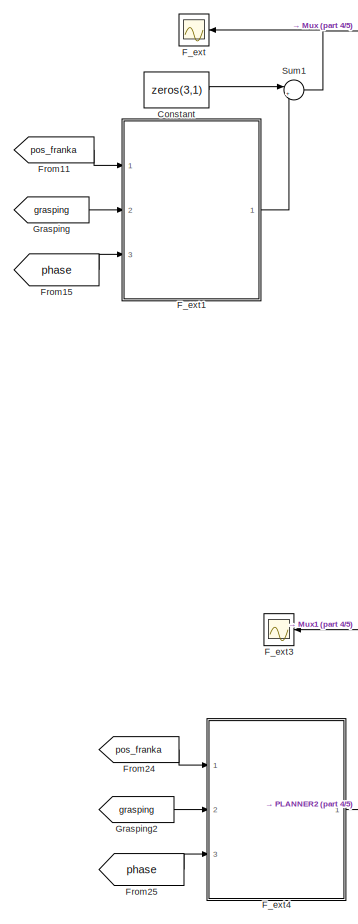
[diagram: root canvas - part 1/5, top left region]
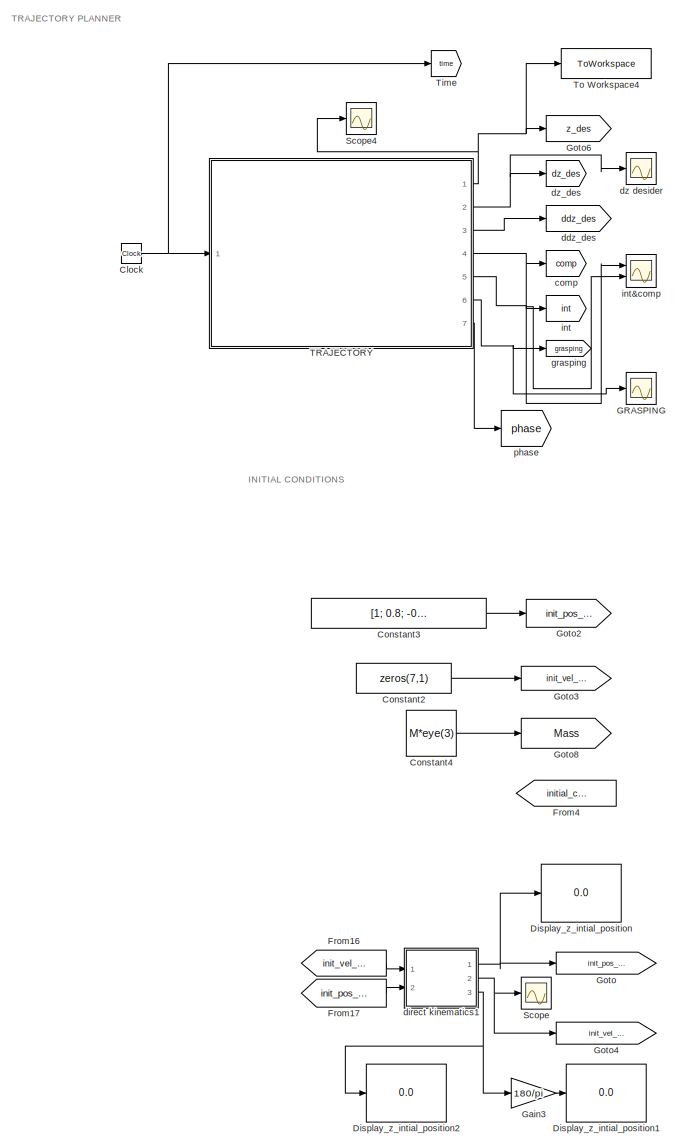
[diagram: root canvas - part 2/5, top left region]
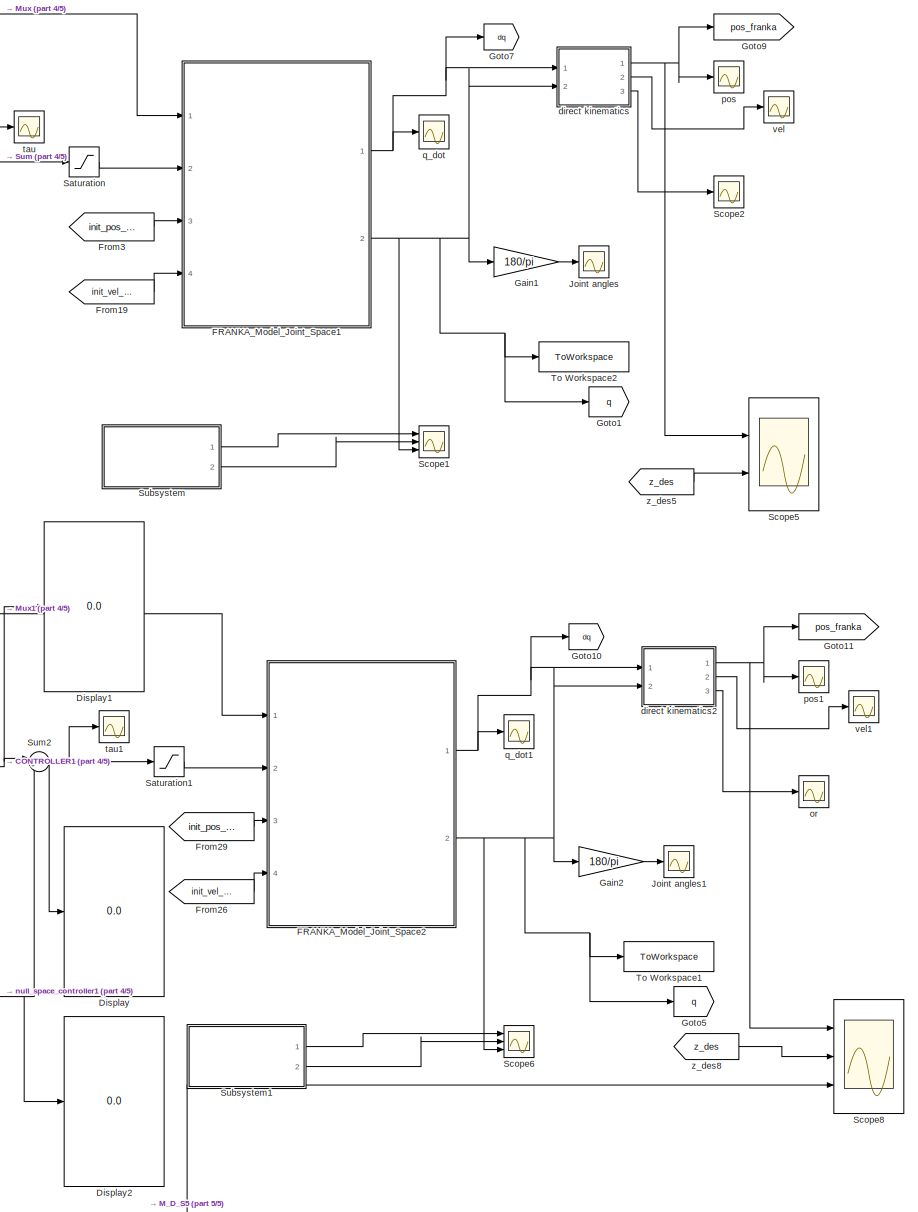
[diagram: root canvas - part 3/5, middle right region]
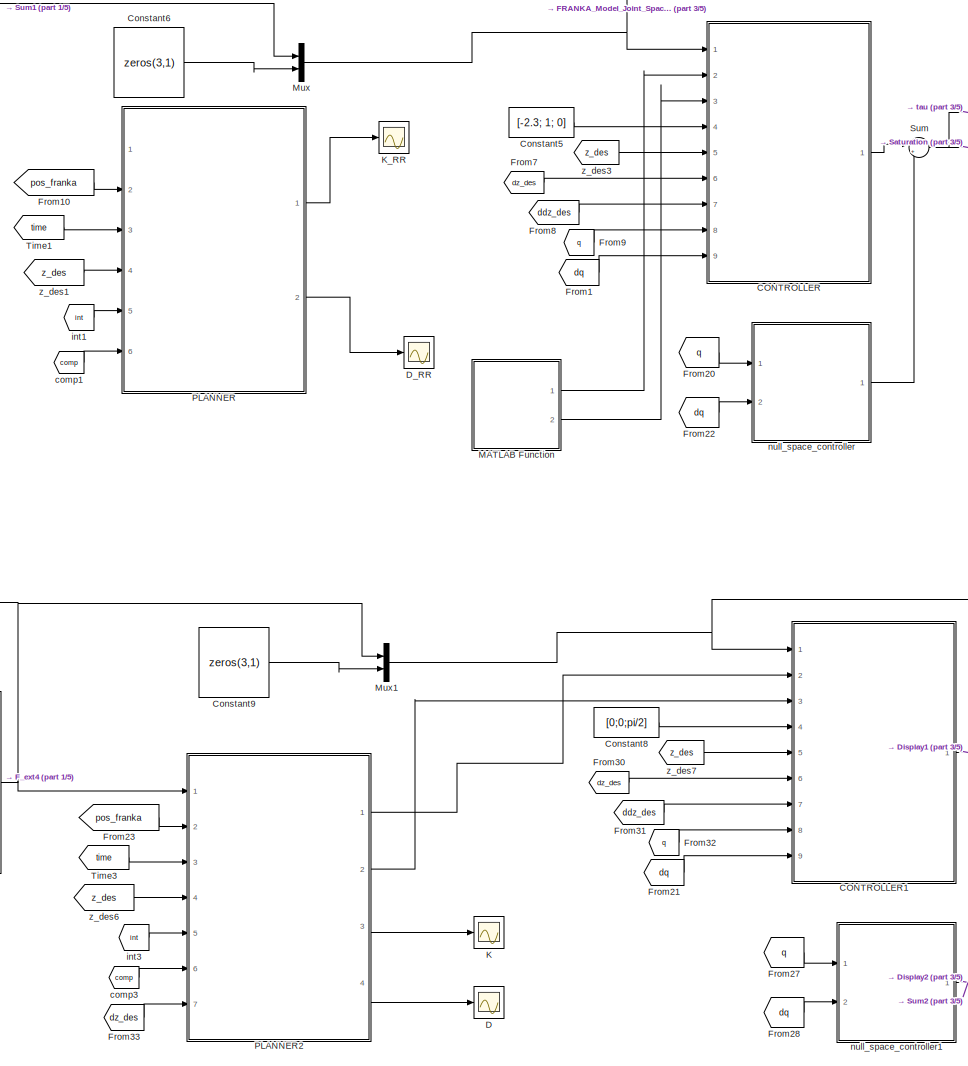
[diagram: root canvas - part 4/5, top center region]
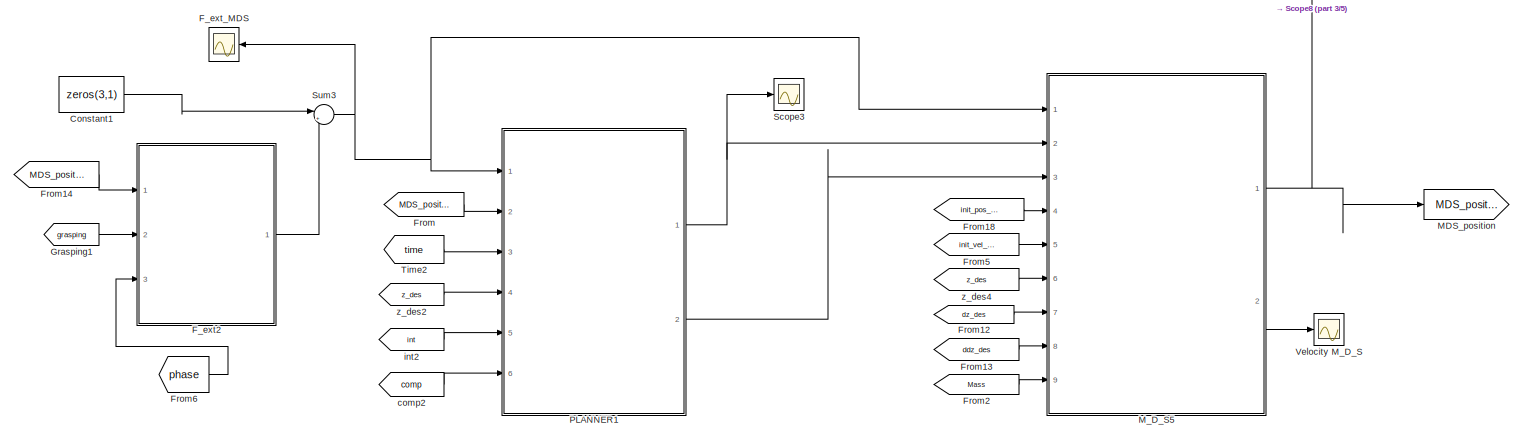
[diagram: root canvas - part 5/5, bottom center region]
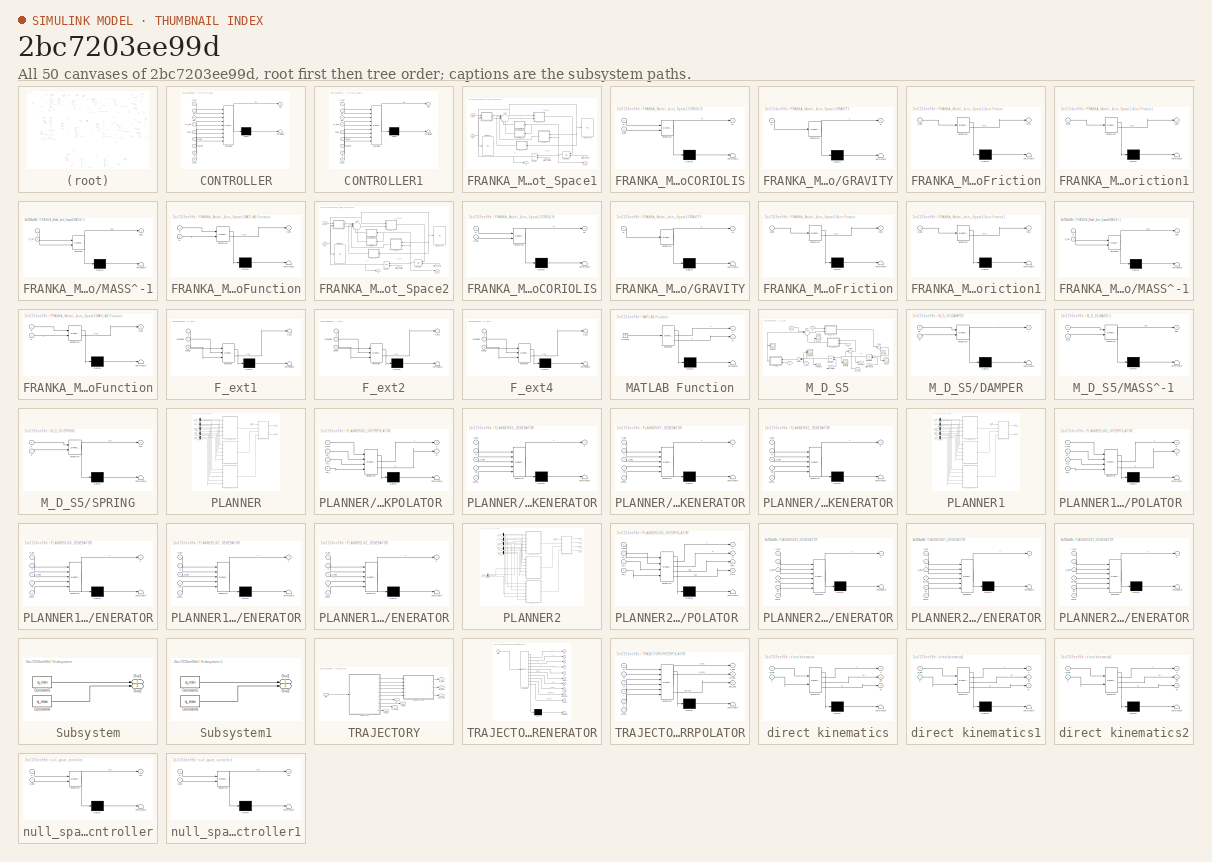
[diagram: thumbnail index - all 50 canvases of the model, root first then tree order]
MODEL slx_2bc7203ee99d
KIND model
CONFIG AbsTol = auto
CONFIG EnableMultiTasking = off
CONFIG FixedStep = 0.01
CONFIG MaxStep = auto
CONFIG MinStep = auto
CONFIG RelTol = 1e-3
CONFIG SampleTimeConstraint = Unconstrained
CONFIG Solver = FixedStepAuto
CONFIG SolverName = FixedStepAuto
CONFIG StartTime = 0.0
CONFIG StopTime = 20
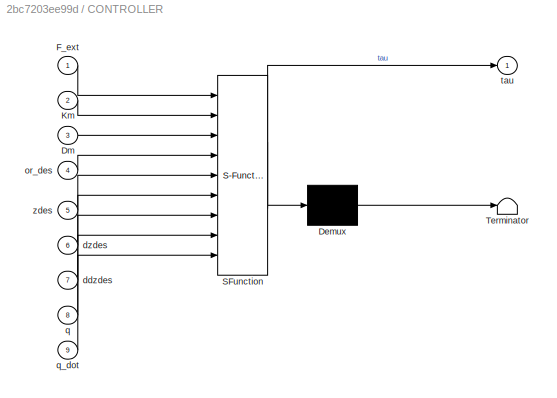
BLOCK [SubSystem] CONTROLLER
  Commented = on
  ErrorFcn = Stateflow.Translate.translate
  PermitHierarchicalResolution = ExplicitOnly
  Ports = [9, 1]
  RequestExecContextInheritance = off
  SFBlockType = MATLAB Function
  TreatAsAtomicUnit = on
BLOCK [Demux] CONTROLLER/ Demux 
  Outputs = 1
  Ports = [1, 1]
BLOCK [S-Function] CONTROLLER/ SFunction 
  EnableBusSupport = on
  FunctionName = sf_sfun
  Parameters = M
  PortCounts = [9 2]
  Ports = [9, 2]
  SFcnIsStateOwnerBlock = off
  SFunctionDeploymentMode = off
  Tag = Stateflow S-Function 3
BLOCK [Terminator] CONTROLLER/ Terminator 
BLOCK [Inport] CONTROLLER/Dm
  Port = 3
BLOCK [Inport] CONTROLLER/F_ext
BLOCK [Inport] CONTROLLER/Km
  Port = 2
BLOCK [Inport] CONTROLLER/ddzdes
  Port = 7
BLOCK [Inport] CONTROLLER/dzdes
  Port = 6
BLOCK [Inport] CONTROLLER/or_des
  Port = 4
BLOCK [Inport] CONTROLLER/q
  Port = 8
BLOCK [Inport] CONTROLLER/q_dot
  Port = 9
BLOCK [Outport] CONTROLLER/tau
BLOCK [Inport] CONTROLLER/zdes
  Port = 5
BLOCK [SubSystem] CONTROLLER1
  ErrorFcn = Stateflow.Translate.translate
  PermitHierarchicalResolution = ExplicitOnly
  Ports = [9, 1]
  RequestExecContextInheritance = off
  SFBlockType = MATLAB Function
  TreatAsAtomicUnit = on
BLOCK [Demux] CONTROLLER1/ Demux 
  Outputs = 1
  Ports = [1, 1]
BLOCK [S-Function] CONTROLLER1/ SFunction 
  EnableBusSupport = on
  FunctionName = sf_sfun
  Parameters = M
  PortCounts = [9 2]
  Ports = [9, 2]
  SFcnIsStateOwnerBlock = off
  SFunctionDeploymentMode = off
  Tag = Stateflow S-Function 27
BLOCK [Terminator] CONTROLLER1/ Terminator 
BLOCK [Inport] CONTROLLER1/Dm
  Port = 3
BLOCK [Inport] CONTROLLER1/F_ext
BLOCK [Inport] CONTROLLER1/Km
  Port = 2
BLOCK [Inport] CONTROLLER1/ddzdes
  Port = 7
BLOCK [Inport] CONTROLLER1/dzdes
  Port = 6
BLOCK [Inport] CONTROLLER1/or_des
  Port = 4
BLOCK [Inport] CONTROLLER1/q
  Port = 8
BLOCK [Inport] CONTROLLER1/q_dot
  Port = 9
BLOCK [Outport] CONTROLLER1/tau
BLOCK [Inport] CONTROLLER1/zdes
  Port = 5
BLOCK [Clock] Clock
BLOCK [Constant] Constant
  Commented = on
  Value = zeros(3,1)
BLOCK [Constant] Constant1
  Value = zeros(3,1)
BLOCK [Constant] Constant2
  Value = zeros(7,1)
BLOCK [Constant] Constant3
  Value = [1; 0.8; -0.1; -1.6; -0.7; 1.1; 1]
  VectorParams1D = off
BLOCK [Constant] Constant4
  Value = M*eye(3)
BLOCK [Constant] Constant5
  Commented = on
  Value = [-2.3; 1; 0]
BLOCK [Constant] Constant6
  Commented = on
  Value = zeros(3,1)
BLOCK [Constant] Constant8
  Value = [0;0;pi/2]
BLOCK [Constant] Constant9
  Value = zeros(3,1)
BLOCK [Scope] D
  Floating = off
  NumInputPorts = 1
  Ports = [1]
  ScopeSpecificationString = Simulink.scopes.TimeScopeBlockCfg('CurrentConfiguration', extmgr.ConfigurationSet(extmgr.Configuration('Core','General UI',true),extmgr.Configuration('Core','Source UI',true),extmgr.Configuration('Sources','WiredSimulink',true,'DataLoggingVariableName','ScopeData2'),extmgr.Configuration('Visuals','Time Domain',true,'SerializedDisplays',{struct('MinYLimReal','2.01039','MaxYLimReal','60.0935','YLabe...<+1408ch>
BLOCK [Scope] D_RR
  Commented = on
  Floating = off
  NumInputPorts = 1
  Ports = [1]
  ScopeSpecificationString = Simulink.scopes.TimeScopeBlockCfg('CurrentConfiguration', extmgr.ConfigurationSet(extmgr.Configuration('Core','General UI',true),extmgr.Configuration('Core','Source UI',true),extmgr.Configuration('Sources','WiredSimulink',true,'DataLoggingVariableName','ScopeData2'),extmgr.Configuration('Visuals','Time Domain',true,'SerializedDisplays',{struct('MinYLimReal','-1.75089','MaxYLimReal','15.75803','YLa...<+1543ch>
BLOCK [Display] Display
  Decimation = 1
  Ports = [1]
BLOCK [Display] Display1
  Decimation = 1
  Ports = [1]
BLOCK [Display] Display2
  Decimation = 1
  Ports = [1]
BLOCK [Display] Display_z_intial_position
  Decimation = 1
  Ports = [1]
BLOCK [Display] Display_z_intial_position1
  Decimation = 1
  Ports = [1]
BLOCK [Display] Display_z_intial_position2
  Decimation = 1
  Ports = [1]
BLOCK [SubSystem] FRANKA_Model_Joint_Space1
  Commented = on
  Ports = [4, 2]
  RequestExecContextInheritance = off
BLOCK [SubSystem] FRANKA_Model_Joint_Space1/CORIOLIS
  ErrorFcn = Stateflow.Translate.translate
  PermitHierarchicalResolution = ExplicitOnly
  Ports = [2, 1]
  RequestExecContextInheritance = off
  SFBlockType = MATLAB Function
  TreatAsAtomicUnit = on
BLOCK [Demux] FRANKA_Model_Joint_Space1/CORIOLIS/ Demux 
  Outputs = 1
  Ports = [1, 1]
BLOCK [S-Function] FRANKA_Model_Joint_Space1/CORIOLIS/ SFunction 
  EnableBusSupport = on
  FunctionName = sf_sfun
  PortCounts = [2 2]
  Ports = [2, 2]
  SFcnIsStateOwnerBlock = off
  SFunctionDeploymentMode = off
  Tag = Stateflow S-Function 9
BLOCK [Terminator] FRANKA_Model_Joint_Space1/CORIOLIS/ Terminator 
BLOCK [Outport] FRANKA_Model_Joint_Space1/CORIOLIS/Fc
BLOCK [Inport] FRANKA_Model_Joint_Space1/CORIOLIS/q
BLOCK [Inport] FRANKA_Model_Joint_Space1/CORIOLIS/q_dot
  Port = 2
BLOCK [Display] FRANKA_Model_Joint_Space1/Display5
  Decimation = 1
  Ports = [1]
BLOCK [Display] FRANKA_Model_Joint_Space1/Displayqqq
  Decimation = 1
  Ports = [1]
BLOCK [Inport] FRANKA_Model_Joint_Space1/F_ext
BLOCK [SubSystem] FRANKA_Model_Joint_Space1/GRAVITY
  ErrorFcn = Stateflow.Translate.translate
  PermitHierarchicalResolution = ExplicitOnly
  Ports = [1, 1]
  RequestExecContextInheritance = off
  SFBlockType = MATLAB Function
  TreatAsAtomicUnit = on
BLOCK [Demux] FRANKA_Model_Joint_Space1/GRAVITY/ Demux 
  Outputs = 1
  Ports = [1, 1]
BLOCK [S-Function] FRANKA_Model_Joint_Space1/GRAVITY/ SFunction 
  EnableBusSupport = on
  FunctionName = sf_sfun
  PortCounts = [1 2]
  Ports = [1, 2]
  SFcnIsStateOwnerBlock = off
  SFunctionDeploymentMode = off
  Tag = Stateflow S-Function 18
BLOCK [Terminator] FRANKA_Model_Joint_Space1/GRAVITY/ Terminator 
BLOCK [Outport] FRANKA_Model_Joint_Space1/GRAVITY/G
BLOCK [Inport] FRANKA_Model_Joint_Space1/GRAVITY/q
BLOCK [Inport] FRANKA_Model_Joint_Space1/Initial_Position
  Port = 3
BLOCK [Inport] FRANKA_Model_Joint_Space1/Initial_Velocity
  Port = 4
BLOCK [Integrator] FRANKA_Model_Joint_Space1/Integrator
  InitialConditionSource = external
  Ports = [2, 1]
BLOCK [Integrator] FRANKA_Model_Joint_Space1/Integrator1
  InitialCondition = [0;0]
  InitialConditionSource = external
  Ports = [2, 1]
BLOCK [SubSystem] FRANKA_Model_Joint_Space1/Joint Friction
  ErrorFcn = Stateflow.Translate.translate
  PermitHierarchicalResolution = ExplicitOnly
  Ports = [1, 1]
  RequestExecContextInheritance = off
  SFBlockType = MATLAB Function
  TreatAsAtomicUnit = on
BLOCK [Demux] FRANKA_Model_Joint_Space1/Joint Friction/ Demux 
  Outputs = 1
  Ports = [1, 1]
BLOCK [S-Function] FRANKA_Model_Joint_Space1/Joint Friction/ SFunction 
  EnableBusSupport = on
  FunctionName = sf_sfun
  PortCounts = [1 2]
  Ports = [1, 2]
  SFcnIsStateOwnerBlock = off
  SFunctionDeploymentMode = off
  Tag = Stateflow S-Function 20
BLOCK [Terminator] FRANKA_Model_Joint_Space1/Joint Friction/ Terminator 
BLOCK [Inport] FRANKA_Model_Joint_Space1/Joint Friction/q_dot
BLOCK [Outport] FRANKA_Model_Joint_Space1/Joint Friction/tau_f
BLOCK [SubSystem] FRANKA_Model_Joint_Space1/Joint Friction1
  Commented = on
  ErrorFcn = Stateflow.Translate.translate
  PermitHierarchicalResolution = ExplicitOnly
  Ports = [1, 1]
  RequestExecContextInheritance = off
  SFBlockType = MATLAB Function
  TreatAsAtomicUnit = on
BLOCK [Demux] FRANKA_Model_Joint_Space1/Joint Friction1/ Demux 
  Outputs = 1
  Ports = [1, 1]
BLOCK [S-Function] FRANKA_Model_Joint_Space1/Joint Friction1/ SFunction 
  EnableBusSupport = on
  FunctionName = sf_sfun
  PortCounts = [1 2]
  Ports = [1, 2]
  SFcnIsStateOwnerBlock = off
  SFunctionDeploymentMode = off
  Tag = Stateflow S-Function 19
BLOCK [Terminator] FRANKA_Model_Joint_Space1/Joint Friction1/ Terminator 
BLOCK [Inport] FRANKA_Model_Joint_Space1/Joint Friction1/q_dot
BLOCK [Outport] FRANKA_Model_Joint_Space1/Joint Friction1/tau_f
BLOCK [SubSystem] FRANKA_Model_Joint_Space1/MASS^-1
  ErrorFcn = Stateflow.Translate.translate
  PermitHierarchicalResolution = ExplicitOnly
  Ports = [2, 1]
  RequestExecContextInheritance = off
  SFBlockType = MATLAB Function
  TreatAsAtomicUnit = on
BLOCK [Demux] FRANKA_Model_Joint_Space1/MASS^-1/ Demux 
  Outputs = 1
  Ports = [1, 1]
BLOCK [S-Function] FRANKA_Model_Joint_Space1/MASS^-1/ SFunction 
  EnableBusSupport = on
  FunctionName = sf_sfun
  PortCounts = [2 2]
  Ports = [2, 2]
  SFcnIsStateOwnerBlock = off
  SFunctionDeploymentMode = off
  Tag = Stateflow S-Function 24
BLOCK [Terminator] FRANKA_Model_Joint_Space1/MASS^-1/ Terminator 
BLOCK [Inport] FRANKA_Model_Joint_Space1/MASS^-1/F_tot
  Port = 2
BLOCK [Outport] FRANKA_Model_Joint_Space1/MASS^-1/ddq
BLOCK [Inport] FRANKA_Model_Joint_Space1/MASS^-1/q
BLOCK [SubSystem] FRANKA_Model_Joint_Space1/MATLAB Function
  ErrorFcn = Stateflow.Translate.translate
  PermitHierarchicalResolution = ExplicitOnly
  Ports = [2, 1]
  RequestExecContextInheritance = off
  SFBlockType = MATLAB Function
  TreatAsAtomicUnit = on
BLOCK [Demux] FRANKA_Model_Joint_Space1/MATLAB Function/ Demux 
  Outputs = 1
  Ports = [1, 1]
BLOCK [S-Function] FRANKA_Model_Joint_Space1/MATLAB Function/ SFunction 
  EnableBusSupport = on
  FunctionName = sf_sfun
  PortCounts = [2 2]
  Ports = [2, 2]
  SFcnIsStateOwnerBlock = off
  SFunctionDeploymentMode = off
  Tag = Stateflow S-Function 25
BLOCK [Terminator] FRANKA_Model_Joint_Space1/MATLAB Function/ Terminator 
BLOCK [Inport] FRANKA_Model_Joint_Space1/MATLAB Function/F
BLOCK [Outport] FRANKA_Model_Joint_Space1/MATLAB Function/F_ext
BLOCK [Inport] FRANKA_Model_Joint_Space1/MATLAB Function/q
  Port = 2
BLOCK [Sum] FRANKA_Model_Joint_Space1/Sum
  Inputs = ||+--+-+
  Ports = [6, 1]
BLOCK [Outport] FRANKA_Model_Joint_Space1/q
  Port = 2
BLOCK [Outport] FRANKA_Model_Joint_Space1/q_dot
BLOCK [Inport] FRANKA_Model_Joint_Space1/tau
  Port = 2
BLOCK [SubSystem] FRANKA_Model_Joint_Space2
  Ports = [4, 2]
  RequestExecContextInheritance = off
BLOCK [SubSystem] FRANKA_Model_Joint_Space2/CORIOLIS
  ErrorFcn = Stateflow.Translate.translate
  PermitHierarchicalResolution = ExplicitOnly
  Ports = [2, 1]
  RequestExecContextInheritance = off
  SFBlockType = MATLAB Function
  TreatAsAtomicUnit = on
BLOCK [Demux] FRANKA_Model_Joint_Space2/CORIOLIS/ Demux 
  Outputs = 1
  Ports = [1, 1]
BLOCK [S-Function] FRANKA_Model_Joint_Space2/CORIOLIS/ SFunction 
  EnableBusSupport = on
  FunctionName = sf_sfun
  PortCounts = [2 2]
  Ports = [2, 2]
  SFcnIsStateOwnerBlock = off
  SFunctionDeploymentMode = off
  Tag = Stateflow S-Function 28
BLOCK [Terminator] FRANKA_Model_Joint_Space2/CORIOLIS/ Terminator 
BLOCK [Outport] FRANKA_Model_Joint_Space2/CORIOLIS/Fc
BLOCK [Inport] FRANKA_Model_Joint_Space2/CORIOLIS/q
BLOCK [Inport] FRANKA_Model_Joint_Space2/CORIOLIS/q_dot
  Port = 2
BLOCK [Display] FRANKA_Model_Joint_Space2/Display5
  Decimation = 1
  Ports = [1]
BLOCK [Display] FRANKA_Model_Joint_Space2/Displayqqq
  Decimation = 1
  Ports = [1]
BLOCK [Inport] FRANKA_Model_Joint_Space2/F_ext
BLOCK [SubSystem] FRANKA_Model_Joint_Space2/GRAVITY
  ErrorFcn = Stateflow.Translate.translate
  PermitHierarchicalResolution = ExplicitOnly
  Ports = [1, 1]
  RequestExecContextInheritance = off
  SFBlockType = MATLAB Function
  TreatAsAtomicUnit = on
BLOCK [Demux] FRANKA_Model_Joint_Space2/GRAVITY/ Demux 
  Outputs = 1
  Ports = [1, 1]
BLOCK [S-Function] FRANKA_Model_Joint_Space2/GRAVITY/ SFunction 
  EnableBusSupport = on
  FunctionName = sf_sfun
  PortCounts = [1 2]
  Ports = [1, 2]
  SFcnIsStateOwnerBlock = off
  SFunctionDeploymentMode = off
  Tag = Stateflow S-Function 29
BLOCK [Terminator] FRANKA_Model_Joint_Space2/GRAVITY/ Terminator 
BLOCK [Outport] FRANKA_Model_Joint_Space2/GRAVITY/G
BLOCK [Inport] FRANKA_Model_Joint_Space2/GRAVITY/q
BLOCK [Inport] FRANKA_Model_Joint_Space2/Initial_Position
  Port = 3
BLOCK [Inport] FRANKA_Model_Joint_Space2/Initial_Velocity
  Port = 4
BLOCK [Integrator] FRANKA_Model_Joint_Space2/Integrator
  InitialConditionSource = external
  Ports = [2, 1]
BLOCK [Integrator] FRANKA_Model_Joint_Space2/Integrator1
  InitialCondition = [0;0]
  InitialConditionSource = external
  Ports = [2, 1]
BLOCK [SubSystem] FRANKA_Model_Joint_Space2/Joint Friction
  ErrorFcn = Stateflow.Translate.translate
  PermitHierarchicalResolution = ExplicitOnly
  Ports = [1, 1]
  RequestExecContextInheritance = off
  SFBlockType = MATLAB Function
  TreatAsAtomicUnit = on
BLOCK [Demux] FRANKA_Model_Joint_Space2/Joint Friction/ Demux 
  Outputs = 1
  Ports = [1, 1]
BLOCK [S-Function] FRANKA_Model_Joint_Space2/Joint Friction/ SFunction 
  EnableBusSupport = on
  FunctionName = sf_sfun
  PortCounts = [1 2]
  Ports = [1, 2]
  SFcnIsStateOwnerBlock = off
  SFunctionDeploymentMode = off
  Tag = Stateflow S-Function 30
BLOCK [Terminator] FRANKA_Model_Joint_Space2/Joint Friction/ Terminator 
BLOCK [Inport] FRANKA_Model_Joint_Space2/Joint Friction/q_dot
BLOCK [Outport] FRANKA_Model_Joint_Space2/Joint Friction/tau_f
BLOCK [SubSystem] FRANKA_Model_Joint_Space2/Joint Friction1
  Commented = on
  ErrorFcn = Stateflow.Translate.translate
  PermitHierarchicalResolution = ExplicitOnly
  Ports = [1, 1]
  RequestExecContextInheritance = off
  SFBlockType = MATLAB Function
  TreatAsAtomicUnit = on
BLOCK [Demux] FRANKA_Model_Joint_Space2/Joint Friction1/ Demux 
  Outputs = 1
  Ports = [1, 1]
BLOCK [S-Function] FRANKA_Model_Joint_Space2/Joint Friction1/ SFunction 
  EnableBusSupport = on
  FunctionName = sf_sfun
  PortCounts = [1 2]
  Ports = [1, 2]
  SFcnIsStateOwnerBlock = off
  SFunctionDeploymentMode = off
  Tag = Stateflow S-Function 31
BLOCK [Terminator] FRANKA_Model_Joint_Space2/Joint Friction1/ Terminator 
BLOCK [Inport] FRANKA_Model_Joint_Space2/Joint Friction1/q_dot
BLOCK [Outport] FRANKA_Model_Joint_Space2/Joint Friction1/tau_f
BLOCK [SubSystem] FRANKA_Model_Joint_Space2/MASS^-1
  ErrorFcn = Stateflow.Translate.translate
  PermitHierarchicalResolution = ExplicitOnly
  Ports = [2, 1]
  RequestExecContextInheritance = off
  SFBlockType = MATLAB Function
  TreatAsAtomicUnit = on
BLOCK [Demux] FRANKA_Model_Joint_Space2/MASS^-1/ Demux 
  Outputs = 1
  Ports = [1, 1]
BLOCK [S-Function] FRANKA_Model_Joint_Space2/MASS^-1/ SFunction 
  EnableBusSupport = on
  FunctionName = sf_sfun
  PortCounts = [2 2]
  Ports = [2, 2]
  SFcnIsStateOwnerBlock = off
  SFunctionDeploymentMode = off
  Tag = Stateflow S-Function 32
BLOCK [Terminator] FRANKA_Model_Joint_Space2/MASS^-1/ Terminator 
BLOCK [Inport] FRANKA_Model_Joint_Space2/MASS^-1/F_tot
  Port = 2
BLOCK [Outport] FRANKA_Model_Joint_Space2/MASS^-1/ddq
BLOCK [Inport] FRANKA_Model_Joint_Space2/MASS^-1/q
BLOCK [SubSystem] FRANKA_Model_Joint_Space2/MATLAB Function
  ErrorFcn = Stateflow.Translate.translate
  PermitHierarchicalResolution = ExplicitOnly
  Ports = [2, 1]
  RequestExecContextInheritance = off
  SFBlockType = MATLAB Function
  TreatAsAtomicUnit = on
BLOCK [Demux] FRANKA_Model_Joint_Space2/MATLAB Function/ Demux 
  Outputs = 1
  Ports = [1, 1]
BLOCK [S-Function] FRANKA_Model_Joint_Space2/MATLAB Function/ SFunction 
  EnableBusSupport = on
  FunctionName = sf_sfun
  PortCounts = [2 2]
  Ports = [2, 2]
  SFcnIsStateOwnerBlock = off
  SFunctionDeploymentMode = off
  Tag = Stateflow S-Function 33
BLOCK [Terminator] FRANKA_Model_Joint_Space2/MATLAB Function/ Terminator 
BLOCK [Inport] FRANKA_Model_Joint_Space2/MATLAB Function/F
BLOCK [Outport] FRANKA_Model_Joint_Space2/MATLAB Function/F_ext
BLOCK [Inport] FRANKA_Model_Joint_Space2/MATLAB Function/q
  Port = 2
BLOCK [Sum] FRANKA_Model_Joint_Space2/Sum
  Inputs = ||+--+-+
  Ports = [6, 1]
BLOCK [Outport] FRANKA_Model_Joint_Space2/q
  Port = 2
BLOCK [Outport] FRANKA_Model_Joint_Space2/q_dot
BLOCK [Inport] FRANKA_Model_Joint_Space2/tau
  Port = 2
BLOCK [Scope] F_ext
  Commented = on
  Floating = off
  NumInputPorts = 1
  Ports = [1]
  ScopeSpecificationString = Simulink.scopes.TimeScopeBlockCfg('CurrentConfiguration', extmgr.ConfigurationSet(extmgr.Configuration('Core','General UI',true),extmgr.Configuration('Core','Source UI',true),extmgr.Configuration('Sources','WiredSimulink',true,'DataLoggingVariableName','ScopeData3'),extmgr.Configuration('Visuals','Time Domain',true,'SerializedDisplays',{struct('MinYLimReal','-28.40115','MaxYLimReal','206.56038','Y...<+1547ch>
BLOCK [SubSystem] F_ext1
  Commented = on
  ErrorFcn = Stateflow.Translate.translate
  PermitHierarchicalResolution = ExplicitOnly
  Ports = [3, 1]
  RequestExecContextInheritance = off
  SFBlockType = MATLAB Function
  TreatAsAtomicUnit = on
BLOCK [Demux] F_ext1/ Demux 
  Outputs = 1
  Ports = [1, 1]
BLOCK [S-Function] F_ext1/ SFunction 
  EnableBusSupport = on
  FunctionName = sf_sfun
  Parameters = g,k_can,k_shelf,k_table,k_wall,l_can,mass_can,y_can,y_wall,z_shelf,z_table
  PortCounts = [3 2]
  Ports = [3, 2]
  SFcnIsStateOwnerBlock = off
  SFunctionDeploymentMode = off
  Tag = Stateflow S-Function 2
BLOCK [Terminator] F_ext1/ Terminator 
BLOCK [Outport] F_ext1/F_ext
BLOCK [Inport] F_ext1/grasping
  Port = 2
BLOCK [Inport] F_ext1/phase
  Port = 3
BLOCK [Inport] F_ext1/z
BLOCK [SubSystem] F_ext2
  ErrorFcn = Stateflow.Translate.translate
  PermitHierarchicalResolution = ExplicitOnly
  Ports = [3, 1]
  RequestExecContextInheritance = off
  SFBlockType = MATLAB Function
  TreatAsAtomicUnit = on
BLOCK [Demux] F_ext2/ Demux 
  Outputs = 1
  Ports = [1, 1]
BLOCK [S-Function] F_ext2/ SFunction 
  EnableBusSupport = on
  FunctionName = sf_sfun
  Parameters = g,k_can,k_shelf,k_table,k_wall,l_can,mass_can,y_can,y_wall,z_shelf,z_table
  PortCounts = [3 2]
  Ports = [3, 2]
  SFcnIsStateOwnerBlock = off
  SFunctionDeploymentMode = off
  Tag = Stateflow S-Function 1
BLOCK [Terminator] F_ext2/ Terminator 
BLOCK [Outport] F_ext2/F_ext
BLOCK [Inport] F_ext2/grasping
  Port = 2
BLOCK [Inport] F_ext2/phase
  Port = 3
BLOCK [Inport] F_ext2/z
BLOCK [Scope] F_ext3
  Floating = off
  NumInputPorts = 1
  Ports = [1]
  ScopeSpecificationString = Simulink.scopes.TimeScopeBlockCfg('CurrentConfiguration', extmgr.ConfigurationSet(extmgr.Configuration('Core','General UI',true),extmgr.Configuration('Core','Source UI',true),extmgr.Configuration('Sources','WiredSimulink',true,'DataLoggingVariableName','ScopeData2'),extmgr.Configuration('Visuals','Time Domain',true,'SerializedDisplays',{struct('MinYLimReal','-8.89631','MaxYLimReal','31.0168','YLab...<+1558ch>
BLOCK [SubSystem] F_ext4
  ErrorFcn = Stateflow.Translate.translate
  PermitHierarchicalResolution = ExplicitOnly
  Ports = [3, 1]
  RequestExecContextInheritance = off
  SFBlockType = MATLAB Function
  TreatAsAtomicUnit = on
BLOCK [Demux] F_ext4/ Demux 
  Outputs = 1
  Ports = [1, 1]
BLOCK [S-Function] F_ext4/ SFunction 
  EnableBusSupport = on
  FunctionName = sf_sfun
  Parameters = g,k_can,k_shelf,k_table,k_wall,l_can,mass_can,y_can,y_wall,z_shelf,z_table
  PortCounts = [3 2]
  Ports = [3, 2]
  SFcnIsStateOwnerBlock = off
  SFunctionDeploymentMode = off
  Tag = Stateflow S-Function 34
BLOCK [Terminator] F_ext4/ Terminator 
BLOCK [Outport] F_ext4/F_ext
BLOCK [Inport] F_ext4/grasping
  Port = 2
BLOCK [Inport] F_ext4/phase
  Port = 3
BLOCK [Inport] F_ext4/z
BLOCK [Scope] F_ext_MDS
  Floating = off
  NumInputPorts = 1
  Ports = [1]
  ScopeSpecificationString = Simulink.scopes.TimeScopeBlockCfg('CurrentConfiguration', extmgr.ConfigurationSet(extmgr.Configuration('Core','General UI',true),extmgr.Configuration('Core','Source UI',true),extmgr.Configuration('Sources','WiredSimulink',true,'DataLoggingVariableName','ScopeData4'),extmgr.Configuration('Visuals','Time Domain',true,'SerializedDisplays',{struct('MinYLimReal','-9.68028','MaxYLimReal','12.56825','YLa...<+1585ch>
BLOCK [From] From
  GotoTag = MDS_position
BLOCK [From] From1
  Commented = on
  GotoTag = dq
BLOCK [From] From10
  Commented = on
  GotoTag = pos_franka
BLOCK [From] From11
  Commented = on
  GotoTag = pos_franka
BLOCK [From] From12
  GotoTag = dz_des
  TagVisibility = global
BLOCK [From] From13
  GotoTag = ddz_des
BLOCK [From] From14
  GotoTag = MDS_position
BLOCK [From] From15
  Commented = on
  GotoTag = phase
BLOCK [From] From16
  GotoTag = init_vel_franka
BLOCK [From] From17
  GotoTag = init_pos_franka
BLOCK [From] From18
  GotoTag = init_pos_MDS
BLOCK [From] From19
  Commented = on
  GotoTag = init_vel_franka
BLOCK [From] From2
  GotoTag = Mass
BLOCK [From] From20
  Commented = on
  GotoTag = q
BLOCK [From] From21
  GotoTag = dq
BLOCK [From] From22
  Commented = on
  GotoTag = dq
BLOCK [From] From23
  GotoTag = pos_franka
BLOCK [From] From24
  GotoTag = pos_franka
BLOCK [From] From25
  GotoTag = phase
BLOCK [From] From26
  GotoTag = init_vel_franka
BLOCK [From] From27
  GotoTag = q
BLOCK [From] From28
  GotoTag = dq
BLOCK [From] From29
  GotoTag = init_pos_franka
BLOCK [From] From3
  Commented = on
  GotoTag = init_pos_franka
BLOCK [From] From30
  GotoTag = dz_des
  TagVisibility = global
BLOCK [From] From31
  GotoTag = ddz_des
BLOCK [From] From32
  GotoTag = q
BLOCK [From] From33
  GotoTag = dz_des
  TagVisibility = global
BLOCK [From] From4
  Commented = on
  GotoTag = initial_condition
BLOCK [From] From5
  GotoTag = init_vel_MDS
BLOCK [From] From6
  GotoTag = phase
BLOCK [From] From7
  Commented = on
  GotoTag = dz_des
  TagVisibility = global
BLOCK [From] From8
  Commented = on
  GotoTag = ddz_des
BLOCK [From] From9
  Commented = on
  GotoTag = q
BLOCK [Scope] GRASPING
  Floating = off
  NumInputPorts = 1
  Ports = [1]
  ScopeSpecificationString = Simulink.scopes.TimeScopeBlockCfg('CurrentConfiguration', extmgr.ConfigurationSet(extmgr.Configuration('Core','General UI',true),extmgr.Configuration('Core','Source UI',true),extmgr.Configuration('Sources','WiredSimulink',true,'DataLoggingVariableName','ScopeData5'),extmgr.Configuration('Visuals','Time Domain',true,'SerializedDisplays',{struct('MinYLimReal','-0.125','MaxYLimReal','1.125','YLabelRe...<+1421ch>
BLOCK [Gain] Gain1
  Commented = on
  Gain = 180/pi
BLOCK [Gain] Gain2
  Gain = 180/pi
BLOCK [Gain] Gain3
  Gain = 180/pi
BLOCK [Goto] Goto
  GotoTag = init_pos_MDS
BLOCK [Goto] Goto1
  Commented = on
  GotoTag = q
BLOCK [Goto] Goto10
  GotoTag = dq
BLOCK [Goto] Goto11
  GotoTag = pos_franka
BLOCK [Goto] Goto2
  GotoTag = init_pos_franka
BLOCK [Goto] Goto3
  GotoTag = init_vel_franka
BLOCK [Goto] Goto4
  GotoTag = init_vel_MDS
BLOCK [Goto] Goto5
  GotoTag = q
BLOCK [Goto] Goto6
  GotoTag = z_des
BLOCK [Goto] Goto7
  Commented = on
  GotoTag = dq
BLOCK [Goto] Goto8
  GotoTag = Mass
BLOCK [Goto] Goto9
  Commented = on
  GotoTag = pos_franka
BLOCK [From] Grasping
  Commented = on
  GotoTag = grasping
BLOCK [From] Grasping1
  GotoTag = grasping
BLOCK [From] Grasping2
  GotoTag = grasping
BLOCK [Scope] Joint angles
  Commented = on
  Floating = off
  NumInputPorts = 1
  Ports = [1]
  ScopeSpecificationString = Simulink.scopes.TimeScopeBlockCfg('CurrentConfiguration', extmgr.ConfigurationSet(extmgr.Configuration('Core','General UI',true),extmgr.Configuration('Core','Source UI',true),extmgr.Configuration('Sources','WiredSimulink',true,'DataLoggingVariableName','ScopeData6'),extmgr.Configuration('Visuals','Time Domain',true,'SerializedDisplays',{struct('MinYLimReal','-158.36602','MaxYLimReal','103.80353','...<+1669ch>
BLOCK [Scope] Joint angles1
  Floating = off
  NumInputPorts = 1
  Ports = [1]
  ScopeSpecificationString = Simulink.scopes.TimeScopeBlockCfg('CurrentConfiguration', extmgr.ConfigurationSet(extmgr.Configuration('Core','General UI',true),extmgr.Configuration('Core','Source UI',true),extmgr.Configuration('Sources','WiredSimulink',true,'DataLoggingVariableName','ScopeData3'),extmgr.Configuration('Visuals','Time Domain',true,'SerializedDisplays',{struct('MinYLimReal','-179.63224','MaxYLimReal','130.39348','...<+1669ch>
BLOCK [Scope] K
  Floating = off
  NumInputPorts = 1
  Ports = [1]
  ScopeSpecificationString = Simulink.scopes.TimeScopeBlockCfg('CurrentConfiguration', extmgr.ConfigurationSet(extmgr.Configuration('Core','General UI',true),extmgr.Configuration('Core','Source UI',true),extmgr.Configuration('Sources','WiredSimulink',true,'DataLoggingVariableName','ScopeData1'),extmgr.Configuration('Visuals','Time Domain',true,'SerializedDisplays',{struct('MinYLimReal','-32.62499','MaxYLimReal','548.625','YLa...<+1530ch>
BLOCK [Scope] K_RR
  Commented = on
  Floating = off
  NumInputPorts = 1
  Ports = [1]
  ScopeSpecificationString = Simulink.scopes.TimeScopeBlockCfg('CurrentConfiguration', extmgr.ConfigurationSet(extmgr.Configuration('Core','General UI',true),extmgr.Configuration('Core','Source UI',true),extmgr.Configuration('Sources','WiredSimulink',true,'DataLoggingVariableName','ScopeData7'),extmgr.Configuration('Visuals','Time Domain',true,'SerializedDisplays',{struct('MinYLimReal','-61.3125','MaxYLimReal','551.8125','YLa...<+2031ch>
BLOCK [SubSystem] MATLAB Function
  Commented = on
  ErrorFcn = Stateflow.Translate.translate
  PermitHierarchicalResolution = ExplicitOnly
  Ports = [0, 2]
  RequestExecContextInheritance = off
  SFBlockType = MATLAB Function
  TreatAsAtomicUnit = on
BLOCK [Demux] MATLAB Function/ Demux 
  Outputs = 1
  Ports = [1, 1]
BLOCK [Ground] MATLAB Function/ Ground 
BLOCK [S-Function] MATLAB Function/ SFunction 
  EnableBusSupport = on
  FunctionName = sf_sfun
  PortCounts = [1 3]
  Ports = [1, 3]
  SFcnIsStateOwnerBlock = off
  SFunctionDeploymentMode = off
  Tag = Stateflow S-Function 26
BLOCK [Terminator] MATLAB Function/ Terminator 
BLOCK [Outport] MATLAB Function/D
  Port = 2
BLOCK [Outport] MATLAB Function/K
BLOCK [Goto] MDS_position
  GotoTag = MDS_position
BLOCK [SubSystem] M_D_S5
  Ports = [9, 2]
  RequestExecContextInheritance = off
BLOCK [Inport] M_D_S5/D
  Port = 3
BLOCK [SubSystem] M_D_S5/DAMPER
  ErrorFcn = Stateflow.Translate.translate
  PermitHierarchicalResolution = ExplicitOnly
  Ports = [2, 1]
  RequestExecContextInheritance = off
  SFBlockType = MATLAB Function
  TreatAsAtomicUnit = on
BLOCK [Demux] M_D_S5/DAMPER/ Demux 
  Outputs = 1
  Ports = [1, 1]
BLOCK [S-Function] M_D_S5/DAMPER/ SFunction 
  EnableBusSupport = on
  FunctionName = sf_sfun
  PortCounts = [2 2]
  Ports = [2, 2]
  SFcnIsStateOwnerBlock = off
  SFunctionDeploymentMode = off
  Tag = Stateflow S-Function 21
BLOCK [Terminator] M_D_S5/DAMPER/ Terminator 
BLOCK [Inport] M_D_S5/DAMPER/D
  Port = 2
BLOCK [Inport] M_D_S5/DAMPER/dx
BLOCK [Outport] M_D_S5/DAMPER/y
BLOCK [Inport] M_D_S5/F_ext
BLOCK [Inport] M_D_S5/Initial_Position
  Port = 4
BLOCK [Inport] M_D_S5/Initial_Velocity
  Port = 5
BLOCK [Integrator] M_D_S5/Integrator
  InitialConditionSource = external
  Ports = [2, 1]
BLOCK [Integrator] M_D_S5/Integrator1
  InitialConditionSource = external
  Ports = [2, 1]
BLOCK [Inport] M_D_S5/K
  Port = 2
BLOCK [Inport] M_D_S5/M
  Port = 9
BLOCK [SubSystem] M_D_S5/MASS^-1
  ErrorFcn = Stateflow.Translate.translate
  PermitHierarchicalResolution = ExplicitOnly
  Ports = [2, 1]
  RequestExecContextInheritance = off
  SFBlockType = MATLAB Function
  TreatAsAtomicUnit = on
BLOCK [Demux] M_D_S5/MASS^-1/ Demux 
  Outputs = 1
  Ports = [1, 1]
BLOCK [S-Function] M_D_S5/MASS^-1/ SFunction 
  EnableBusSupport = on
  FunctionName = sf_sfun
  PortCounts = [2 2]
  Ports = [2, 2]
  SFcnIsStateOwnerBlock = off
  SFunctionDeploymentMode = off
  Tag = Stateflow S-Function 22
BLOCK [Terminator] M_D_S5/MASS^-1/ Terminator 
BLOCK [Inport] M_D_S5/MASS^-1/F_tot
  Port = 2
BLOCK [Inport] M_D_S5/MASS^-1/M
BLOCK [Outport] M_D_S5/MASS^-1/ddx
BLOCK [Outport] M_D_S5/POSITION
BLOCK [SubSystem] M_D_S5/SPRING
  ErrorFcn = Stateflow.Translate.translate
  PermitHierarchicalResolution = ExplicitOnly
  Ports = [2, 1]
  RequestExecContextInheritance = off
  SFBlockType = MATLAB Function
  TreatAsAtomicUnit = on
BLOCK [Demux] M_D_S5/SPRING/ Demux 
  Outputs = 1
  Ports = [1, 1]
BLOCK [S-Function] M_D_S5/SPRING/ SFunction 
  EnableBusSupport = on
  FunctionName = sf_sfun
  PortCounts = [2 2]
  Ports = [2, 2]
  SFcnIsStateOwnerBlock = off
  SFunctionDeploymentMode = off
  Tag = Stateflow S-Function 23
BLOCK [Terminator] M_D_S5/SPRING/ Terminator 
BLOCK [Inport] M_D_S5/SPRING/K
  Port = 2
BLOCK [Outport] M_D_S5/SPRING/tau
BLOCK [Inport] M_D_S5/SPRING/x
BLOCK [Scope] M_D_S5/Scope
  Floating = off
  NumInputPorts = 1
  Ports = [1]
  ScopeSpecificationString = Simulink.scopes.TimeScopeBlockCfg('CurrentConfiguration', extmgr.ConfigurationSet(extmgr.Configuration('Core','General UI',true),extmgr.Configuration('Core','Source UI',true),extmgr.Configuration('Sources','WiredSimulink',true,'DataLoggingVariableName','ScopeData15'),extmgr.Configuration('Visuals','Time Domain',true,'SerializedDisplays',{struct('MinYLimReal','-37.99931','MaxYLimReal','6.12026','YL...<+1429ch>
BLOCK [Scope] M_D_S5/Scope1
  Floating = off
  NumInputPorts = 1
  Ports = [1]
  ScopeSpecificationString = Simulink.scopes.TimeScopeBlockCfg('CurrentConfiguration', extmgr.ConfigurationSet(extmgr.Configuration('Core','General UI',true),extmgr.Configuration('Core','Source UI',true),extmgr.Configuration('Sources','WiredSimulink',true,'DataLoggingVariableName','ScopeData17'),extmgr.Configuration('Visuals','Time Domain',true,'SerializedDisplays',{struct('MinYLimReal','-42.49417','MaxYLimReal','4.72157','YL...<+1454ch>
BLOCK [Sum] M_D_S5/Sum
  Inputs = |+++
  Ports = [3, 1]
BLOCK [Sum] M_D_S5/Sum1
  Inputs = |+-
  Ports = [2, 1]
BLOCK [Sum] M_D_S5/Sum2
  Inputs = |+-
  Ports = [2, 1]
BLOCK [Sum] M_D_S5/Sum3
  Inputs = |++
  Ports = [2, 1]
BLOCK [Outport] M_D_S5/VELOCITY
  Port = 2
BLOCK [Scope] M_D_S5/acc
  Floating = off
  NumInputPorts = 1
  Ports = [1]
  ScopeSpecificationString = Simulink.scopes.TimeScopeBlockCfg('CurrentConfiguration', extmgr.ConfigurationSet(extmgr.Configuration('Core','General UI',true),extmgr.Configuration('Core','Source UI',true),extmgr.Configuration('Sources','WiredSimulink',true,'DataLoggingVariableName','ScopeData6'),extmgr.Configuration('Visuals','Time Domain',true,'SerializedDisplays',{struct('MinYLimReal','-10.14929','MaxYLimReal','22.48721','YL...<+1470ch>
BLOCK [Inport] M_D_S5/ddz_des
  Port = 8
BLOCK [Inport] M_D_S5/dz_des
  Port = 7
BLOCK [Scope] M_D_S5/posizione
  Floating = off
  NumInputPorts = 2
  Ports = [2]
  ScopeSpecificationString = Simulink.scopes.TimeScopeBlockCfg('CurrentConfiguration', extmgr.ConfigurationSet(extmgr.Configuration('Core','General UI',true),extmgr.Configuration('Core','Source UI',true),extmgr.Configuration('Sources','WiredSimulink',true,'DataLoggingVariableName','ScopeData8'),extmgr.Configuration('Visuals','Time Domain',true,'SerializedDisplays',{struct('MinYLimReal','-0.15023','MaxYLimReal','1.35207','YLab...<+1431ch>
BLOCK [Scope] M_D_S5/velocita
  Floating = off
  NumInputPorts = 1
  Ports = [1]
  ScopeSpecificationString = Simulink.scopes.TimeScopeBlockCfg('CurrentConfiguration', extmgr.ConfigurationSet(extmgr.Configuration('Core','General UI',true),extmgr.Configuration('Core','Source UI',true),extmgr.Configuration('Sources','WiredSimulink',true,'DataLoggingVariableName','ScopeData7'),extmgr.Configuration('Visuals','Time Domain',true,'SerializedDisplays',{struct('MinYLimReal','-0.64463','MaxYLimReal','2.63053','YLab...<+1417ch>
BLOCK [Inport] M_D_S5/z_des
  Port = 6
BLOCK [Mux] Mux
  Commented = on
  DisplayOption = bar
  Inputs = 2
  Ports = [2, 1]
BLOCK [Mux] Mux1
  DisplayOption = bar
  Inputs = 2
  Ports = [2, 1]
BLOCK [SubSystem] PLANNER
  Commented = on
  Ports = [6, 2]
  RequestExecContextInheritance = off
BLOCK [Outport] PLANNER/D
  Port = 2
BLOCK [Demux] PLANNER/Demux
  Outputs = 3
  Ports = [1, 3]
BLOCK [Demux] PLANNER/Demux1
  Outputs = 3
  Ports = [1, 3]
BLOCK [Demux] PLANNER/Demux2
  Outputs = 3
  Ports = [1, 3]
BLOCK [Demux] PLANNER/Demux3
  Outputs = 3
  Ports = [1, 3]
BLOCK [Demux] PLANNER/Demux4
  Outputs = 3
  Ports = [1, 3]
BLOCK [Inport] PLANNER/F_ext
BLOCK [Outport] PLANNER/K
BLOCK [SubSystem] PLANNER/KD_INTERPOLATOR 
  ErrorFcn = Stateflow.Translate.translate
  PermitHierarchicalResolution = ExplicitOnly
  Ports = [4, 2]
  RequestExecContextInheritance = off
  SFBlockType = MATLAB Function
  TreatAsAtomicUnit = on
BLOCK [Demux] PLANNER/KD_INTERPOLATOR / Demux 
  Outputs = 1
  Ports = [1, 1]
BLOCK [S-Function] PLANNER/KD_INTERPOLATOR / SFunction 
  EnableBusSupport = on
  FunctionName = sf_sfun
  Parameters = F_max,M,a0,berta,csi,e_max,mass
  PortCounts = [4 3]
  Ports = [4, 3]
  SFcnIsStateOwnerBlock = off
  SFunctionDeploymentMode = off
  Tag = Stateflow S-Function 15
BLOCK [Terminator] PLANNER/KD_INTERPOLATOR / Terminator 
BLOCK [Outport] PLANNER/KD_INTERPOLATOR /D
  Port = 2
BLOCK [Outport] PLANNER/KD_INTERPOLATOR /K
BLOCK [Inport] PLANNER/KD_INTERPOLATOR /kx_f
  Port = 2
BLOCK [Inport] PLANNER/KD_INTERPOLATOR /ky_f
  Port = 3
BLOCK [Inport] PLANNER/KD_INTERPOLATOR /kz_f
  Port = 4
BLOCK [Inport] PLANNER/KD_INTERPOLATOR /time
BLOCK [SubSystem] PLANNER/KX_GENERATOR
  ErrorFcn = Stateflow.Translate.translate
  PermitHierarchicalResolution = ExplicitOnly
  Ports = [5, 1]
  RequestExecContextInheritance = off
  SFBlockType = MATLAB Function
  TreatAsAtomicUnit = on
BLOCK [Demux] PLANNER/KX_GENERATOR/ Demux 
  Outputs = 1
  Ports = [1, 1]
BLOCK [S-Function] PLANNER/KX_GENERATOR/ SFunction 
  EnableBusSupport = on
  FunctionName = sf_sfun
  Parameters = F_int_max,F_max,e_max
  PortCounts = [5 2]
  Ports = [5, 2]
  SFcnIsStateOwnerBlock = off
  SFunctionDeploymentMode = off
  Tag = Stateflow S-Function 16
BLOCK [Terminator] PLANNER/KX_GENERATOR/ Terminator 
BLOCK [Inport] PLANNER/KX_GENERATOR/F_ext
BLOCK [Inport] PLANNER/KX_GENERATOR/comp
  Port = 5
BLOCK [Inport] PLANNER/KX_GENERATOR/int
  Port = 4
BLOCK [Outport] PLANNER/KX_GENERATOR/k
BLOCK [Inport] PLANNER/KX_GENERATOR/z
  Port = 2
BLOCK [Inport] PLANNER/KX_GENERATOR/z_des
  Port = 3
BLOCK [SubSystem] PLANNER/KY_GENERATOR
  ErrorFcn = Stateflow.Translate.translate
  PermitHierarchicalResolution = ExplicitOnly
  Ports = [5, 1]
  RequestExecContextInheritance = off
  SFBlockType = MATLAB Function
  TreatAsAtomicUnit = on
BLOCK [Demux] PLANNER/KY_GENERATOR/ Demux 
  Outputs = 1
  Ports = [1, 1]
BLOCK [S-Function] PLANNER/KY_GENERATOR/ SFunction 
  EnableBusSupport = on
  FunctionName = sf_sfun
  Parameters = F_int_max,F_max,e_max
  PortCounts = [5 2]
  Ports = [5, 2]
  SFcnIsStateOwnerBlock = off
  SFunctionDeploymentMode = off
  Tag = Stateflow S-Function 4
BLOCK [Terminator] PLANNER/KY_GENERATOR/ Terminator 
BLOCK [Inport] PLANNER/KY_GENERATOR/F_ext
BLOCK [Inport] PLANNER/KY_GENERATOR/comp
  Port = 5
BLOCK [Inport] PLANNER/KY_GENERATOR/int
  Port = 4
BLOCK [Outport] PLANNER/KY_GENERATOR/k
BLOCK [Inport] PLANNER/KY_GENERATOR/z
  Port = 2
BLOCK [Inport] PLANNER/KY_GENERATOR/z_des
  Port = 3
BLOCK [SubSystem] PLANNER/KZ_GENERATOR
  ErrorFcn = Stateflow.Translate.translate
  PermitHierarchicalResolution = ExplicitOnly
  Ports = [5, 1]
  RequestExecContextInheritance = off
  SFBlockType = MATLAB Function
  TreatAsAtomicUnit = on
BLOCK [Demux] PLANNER/KZ_GENERATOR/ Demux 
  Outputs = 1
  Ports = [1, 1]
BLOCK [S-Function] PLANNER/KZ_GENERATOR/ SFunction 
  EnableBusSupport = on
  FunctionName = sf_sfun
  Parameters = F_int_max,F_max,e_max
  PortCounts = [5 2]
  Ports = [5, 2]
  SFcnIsStateOwnerBlock = off
  SFunctionDeploymentMode = off
  Tag = Stateflow S-Function 5
BLOCK [Terminator] PLANNER/KZ_GENERATOR/ Terminator 
BLOCK [Inport] PLANNER/KZ_GENERATOR/F_ext
BLOCK [Inport] PLANNER/KZ_GENERATOR/comp
  Port = 5
BLOCK [Inport] PLANNER/KZ_GENERATOR/int
  Port = 4
BLOCK [Outport] PLANNER/KZ_GENERATOR/k
BLOCK [Inport] PLANNER/KZ_GENERATOR/z
  Port = 2
BLOCK [Inport] PLANNER/KZ_GENERATOR/z_des
  Port = 3
BLOCK [Inport] PLANNER/comp
  Port = 6
BLOCK [Inport] PLANNER/int
  Port = 5
BLOCK [Inport] PLANNER/time
  Port = 3
BLOCK [Inport] PLANNER/z
  Port = 2
BLOCK [Inport] PLANNER/z_des
  Port = 4
BLOCK [SubSystem] PLANNER1
  Ports = [6, 2]
  RequestExecContextInheritance = off
BLOCK [Outport] PLANNER1/D
  Port = 2
BLOCK [Demux] PLANNER1/Demux
  Outputs = 3
  Ports = [1, 3]
BLOCK [Demux] PLANNER1/Demux1
  Outputs = 3
  Ports = [1, 3]
BLOCK [Demux] PLANNER1/Demux2
  Outputs = 3
  Ports = [1, 3]
BLOCK [Demux] PLANNER1/Demux3
  Outputs = 3
  Ports = [1, 3]
BLOCK [Demux] PLANNER1/Demux4
  Outputs = 3
  Ports = [1, 3]
BLOCK [Inport] PLANNER1/F_ext
BLOCK [Outport] PLANNER1/K
BLOCK [SubSystem] PLANNER1/KD_INTERPOLATOR 
  ErrorFcn = Stateflow.Translate.translate
  PermitHierarchicalResolution = ExplicitOnly
  Ports = [4, 2]
  RequestExecContextInheritance = off
  SFBlockType = MATLAB Function
  TreatAsAtomicUnit = on
BLOCK [Demux] PLANNER1/KD_INTERPOLATOR / Demux 
  Outputs = 1
  Ports = [1, 1]
BLOCK [S-Function] PLANNER1/KD_INTERPOLATOR / SFunction 
  EnableBusSupport = on
  FunctionName = sf_sfun
  Parameters = F_max,M,a0,berta,csi,e_max,mass
  PortCounts = [4 3]
  Ports = [4, 3]
  SFcnIsStateOwnerBlock = off
  SFunctionDeploymentMode = off
  Tag = Stateflow S-Function 6
BLOCK [Terminator] PLANNER1/KD_INTERPOLATOR / Terminator 
BLOCK [Outport] PLANNER1/KD_INTERPOLATOR /D
  Port = 2
BLOCK [Outport] PLANNER1/KD_INTERPOLATOR /K
BLOCK [Inport] PLANNER1/KD_INTERPOLATOR /kx_f
  Port = 2
BLOCK [Inport] PLANNER1/KD_INTERPOLATOR /ky_f
  Port = 3
BLOCK [Inport] PLANNER1/KD_INTERPOLATOR /kz_f
  Port = 4
BLOCK [Inport] PLANNER1/KD_INTERPOLATOR /time
BLOCK [SubSystem] PLANNER1/KX_GENERATOR
  ErrorFcn = Stateflow.Translate.translate
  PermitHierarchicalResolution = ExplicitOnly
  Ports = [5, 1]
  RequestExecContextInheritance = off
  SFBlockType = MATLAB Function
  TreatAsAtomicUnit = on
BLOCK [Demux] PLANNER1/KX_GENERATOR/ Demux 
  Outputs = 1
  Ports = [1, 1]
BLOCK [S-Function] PLANNER1/KX_GENERATOR/ SFunction 
  EnableBusSupport = on
  FunctionName = sf_sfun
  Parameters = F_int_max,F_max,e_max
  PortCounts = [5 2]
  Ports = [5, 2]
  SFcnIsStateOwnerBlock = off
  SFunctionDeploymentMode = off
  Tag = Stateflow S-Function 7
BLOCK [Terminator] PLANNER1/KX_GENERATOR/ Terminator 
BLOCK [Inport] PLANNER1/KX_GENERATOR/F_ext
BLOCK [Inport] PLANNER1/KX_GENERATOR/comp
  Port = 5
BLOCK [Inport] PLANNER1/KX_GENERATOR/int
  Port = 4
BLOCK [Outport] PLANNER1/KX_GENERATOR/k
BLOCK [Inport] PLANNER1/KX_GENERATOR/z
  Port = 2
BLOCK [Inport] PLANNER1/KX_GENERATOR/z_des
  Port = 3
BLOCK [SubSystem] PLANNER1/KY_GENERATOR
  ErrorFcn = Stateflow.Translate.translate
  PermitHierarchicalResolution = ExplicitOnly
  Ports = [5, 1]
  RequestExecContextInheritance = off
  SFBlockType = MATLAB Function
  TreatAsAtomicUnit = on
BLOCK [Demux] PLANNER1/KY_GENERATOR/ Demux 
  Outputs = 1
  Ports = [1, 1]
BLOCK [S-Function] PLANNER1/KY_GENERATOR/ SFunction 
  EnableBusSupport = on
  FunctionName = sf_sfun
  Parameters = F_int_max,F_max,e_max
  PortCounts = [5 2]
  Ports = [5, 2]
  SFcnIsStateOwnerBlock = off
  SFunctionDeploymentMode = off
  Tag = Stateflow S-Function 10
BLOCK [Terminator] PLANNER1/KY_GENERATOR/ Terminator 
BLOCK [Inport] PLANNER1/KY_GENERATOR/F_ext
BLOCK [Inport] PLANNER1/KY_GENERATOR/comp
  Port = 5
BLOCK [Inport] PLANNER1/KY_GENERATOR/int
  Port = 4
BLOCK [Outport] PLANNER1/KY_GENERATOR/k
BLOCK [Inport] PLANNER1/KY_GENERATOR/z
  Port = 2
BLOCK [Inport] PLANNER1/KY_GENERATOR/z_des
  Port = 3
BLOCK [SubSystem] PLANNER1/KZ_GENERATOR
  ErrorFcn = Stateflow.Translate.translate
  PermitHierarchicalResolution = ExplicitOnly
  Ports = [5, 1]
  RequestExecContextInheritance = off
  SFBlockType = MATLAB Function
  TreatAsAtomicUnit = on
BLOCK [Demux] PLANNER1/KZ_GENERATOR/ Demux 
  Outputs = 1
  Ports = [1, 1]
BLOCK [S-Function] PLANNER1/KZ_GENERATOR/ SFunction 
  EnableBusSupport = on
  FunctionName = sf_sfun
  Parameters = F_int_max,F_max,e_max
  PortCounts = [5 2]
  Ports = [5, 2]
  SFcnIsStateOwnerBlock = off
  SFunctionDeploymentMode = off
  Tag = Stateflow S-Function 13
BLOCK [Terminator] PLANNER1/KZ_GENERATOR/ Terminator 
BLOCK [Inport] PLANNER1/KZ_GENERATOR/F_ext
BLOCK [Inport] PLANNER1/KZ_GENERATOR/comp
  Port = 5
BLOCK [Inport] PLANNER1/KZ_GENERATOR/int
  Port = 4
BLOCK [Outport] PLANNER1/KZ_GENERATOR/k
BLOCK [Inport] PLANNER1/KZ_GENERATOR/z
  Port = 2
BLOCK [Inport] PLANNER1/KZ_GENERATOR/z_des
  Port = 3
BLOCK [Inport] PLANNER1/comp
  Port = 6
BLOCK [Inport] PLANNER1/int
  Port = 5
BLOCK [Inport] PLANNER1/time
  Port = 3
BLOCK [Inport] PLANNER1/z
  Port = 2
BLOCK [Inport] PLANNER1/z_des
  Port = 4
BLOCK [SubSystem] PLANNER2
  Ports = [7, 4]
  RequestExecContextInheritance = off
BLOCK [Outport] PLANNER2/D
  Port = 2
BLOCK [Demux] PLANNER2/Demux
  Outputs = 3
  Ports = [1, 3]
BLOCK [Demux] PLANNER2/Demux1
  Outputs = 3
  Ports = [1, 3]
BLOCK [Demux] PLANNER2/Demux2
  Outputs = 3
  Ports = [1, 3]
BLOCK [Demux] PLANNER2/Demux3
  Outputs = 3
  Ports = [1, 3]
BLOCK [Demux] PLANNER2/Demux4
  Outputs = 3
  Ports = [1, 3]
BLOCK [Demux] PLANNER2/Demux5
  Outputs = 3
  Ports = [1, 3]
BLOCK [Inport] PLANNER2/F_ext
BLOCK [Outport] PLANNER2/K
BLOCK [SubSystem] PLANNER2/KD_INTERPOLATOR 
  ErrorFcn = Stateflow.Translate.translate
  PermitHierarchicalResolution = ExplicitOnly
  Ports = [4, 4]
  RequestExecContextInheritance = off
  SFBlockType = MATLAB Function
  TreatAsAtomicUnit = on
BLOCK [Demux] PLANNER2/KD_INTERPOLATOR / Demux 
  Outputs = 1
  Ports = [1, 1]
BLOCK [S-Function] PLANNER2/KD_INTERPOLATOR / SFunction 
  EnableBusSupport = on
  FunctionName = sf_sfun
  Parameters = F_max,M,a0,berta,csi,e_max,mass
  PortCounts = [4 5]
  Ports = [4, 5]
  SFcnIsStateOwnerBlock = off
  SFunctionDeploymentMode = off
  Tag = Stateflow S-Function 36
BLOCK [Terminator] PLANNER2/KD_INTERPOLATOR / Terminator 
BLOCK [Outport] PLANNER2/KD_INTERPOLATOR /D
  Port = 2
BLOCK [Outport] PLANNER2/KD_INTERPOLATOR /Dvis
  Port = 4
BLOCK [Outport] PLANNER2/KD_INTERPOLATOR /K
BLOCK [Outport] PLANNER2/KD_INTERPOLATOR /Kvis
  Port = 3
BLOCK [Inport] PLANNER2/KD_INTERPOLATOR /kx_f
  Port = 2
BLOCK [Inport] PLANNER2/KD_INTERPOLATOR /ky_f
  Port = 3
BLOCK [Inport] PLANNER2/KD_INTERPOLATOR /kz_f
  Port = 4
BLOCK [Inport] PLANNER2/KD_INTERPOLATOR /time
BLOCK [SubSystem] PLANNER2/KX_GENERATOR
  ErrorFcn = Stateflow.Translate.translate
  PermitHierarchicalResolution = ExplicitOnly
  Ports = [6, 1]
  RequestExecContextInheritance = off
  SFBlockType = MATLAB Function
  TreatAsAtomicUnit = on
BLOCK [Demux] PLANNER2/KX_GENERATOR/ Demux 
  Outputs = 1
  Ports = [1, 1]
BLOCK [S-Function] PLANNER2/KX_GENERATOR/ SFunction 
  EnableBusSupport = on
  FunctionName = sf_sfun
  Parameters = F_int_max,F_max,e_max
  PortCounts = [6 2]
  Ports = [6, 2]
  SFcnIsStateOwnerBlock = off
  SFunctionDeploymentMode = off
  Tag = Stateflow S-Function 37
BLOCK [Terminator] PLANNER2/KX_GENERATOR/ Terminator 
BLOCK [Inport] PLANNER2/KX_GENERATOR/F_ext
BLOCK [Inport] PLANNER2/KX_GENERATOR/comp
  Port = 6
BLOCK [Inport] PLANNER2/KX_GENERATOR/dz_des
  Port = 4
BLOCK [Inport] PLANNER2/KX_GENERATOR/int
  Port = 5
BLOCK [Outport] PLANNER2/KX_GENERATOR/k
BLOCK [Inport] PLANNER2/KX_GENERATOR/z
  Port = 2
BLOCK [Inport] PLANNER2/KX_GENERATOR/z_des
  Port = 3
BLOCK [SubSystem] PLANNER2/KY_GENERATOR
  ErrorFcn = Stateflow.Translate.translate
  PermitHierarchicalResolution = ExplicitOnly
  Ports = [6, 1]
  RequestExecContextInheritance = off
  SFBlockType = MATLAB Function
  TreatAsAtomicUnit = on
BLOCK [Demux] PLANNER2/KY_GENERATOR/ Demux 
  Outputs = 1
  Ports = [1, 1]
BLOCK [S-Function] PLANNER2/KY_GENERATOR/ SFunction 
  EnableBusSupport = on
  FunctionName = sf_sfun
  Parameters = F_int_max,F_max,e_max
  PortCounts = [6 2]
  Ports = [6, 2]
  SFcnIsStateOwnerBlock = off
  SFunctionDeploymentMode = off
  Tag = Stateflow S-Function 35
BLOCK [Terminator] PLANNER2/KY_GENERATOR/ Terminator 
BLOCK [Inport] PLANNER2/KY_GENERATOR/F_ext
BLOCK [Inport] PLANNER2/KY_GENERATOR/comp
  Port = 6
BLOCK [Inport] PLANNER2/KY_GENERATOR/dz_des
  Port = 4
BLOCK [Inport] PLANNER2/KY_GENERATOR/int
  Port = 5
BLOCK [Outport] PLANNER2/KY_GENERATOR/k
BLOCK [Inport] PLANNER2/KY_GENERATOR/z
  Port = 2
BLOCK [Inport] PLANNER2/KY_GENERATOR/z_des
  Port = 3
BLOCK [SubSystem] PLANNER2/KZ_GENERATOR
  ErrorFcn = Stateflow.Translate.translate
  PermitHierarchicalResolution = ExplicitOnly
  Ports = [6, 1]
  RequestExecContextInheritance = off
  SFBlockType = MATLAB Function
  TreatAsAtomicUnit = on
BLOCK [Demux] PLANNER2/KZ_GENERATOR/ Demux 
  Outputs = 1
  Ports = [1, 1]
BLOCK [S-Function] PLANNER2/KZ_GENERATOR/ SFunction 
  EnableBusSupport = on
  FunctionName = sf_sfun
  Parameters = F_int_max,F_max,e_max
  PortCounts = [6 2]
  Ports = [6, 2]
  SFcnIsStateOwnerBlock = off
  SFunctionDeploymentMode = off
  Tag = Stateflow S-Function 39
BLOCK [Terminator] PLANNER2/KZ_GENERATOR/ Terminator 
BLOCK [Inport] PLANNER2/KZ_GENERATOR/F_ext
BLOCK [Inport] PLANNER2/KZ_GENERATOR/comp
  Port = 6
BLOCK [Inport] PLANNER2/KZ_GENERATOR/dz_des
  Port = 4
BLOCK [Inport] PLANNER2/KZ_GENERATOR/int
  Port = 5
BLOCK [Outport] PLANNER2/KZ_GENERATOR/k
BLOCK [Inport] PLANNER2/KZ_GENERATOR/z
  Port = 2
BLOCK [Inport] PLANNER2/KZ_GENERATOR/z_des
  Port = 3
BLOCK [Inport] PLANNER2/comp
  Port = 6
BLOCK [Outport] PLANNER2/dvis
  Port = 4
BLOCK [Inport] PLANNER2/dz_des
  Port = 7
BLOCK [Inport] PLANNER2/int
  Port = 5
BLOCK [Outport] PLANNER2/kvis
  Port = 3
BLOCK [Inport] PLANNER2/time
  Port = 3
BLOCK [Inport] PLANNER2/z
  Port = 2
BLOCK [Inport] PLANNER2/z_des
  Port = 4
BLOCK [Saturate] Saturation
  Commented = on
  LowerLimit = -100
  UpperLimit = 100
BLOCK [Saturate] Saturation1
  LowerLimit = -100
  UpperLimit = 100
BLOCK [Scope] Scope
  Floating = off
  NumInputPorts = 1
  Ports = [1]
  ScopeSpecificationString = Simulink.scopes.TimeScopeBlockCfg('CurrentConfiguration', extmgr.ConfigurationSet(extmgr.Configuration('Core','General UI',true),extmgr.Configuration('Core','Source UI',true),extmgr.Configuration('Sources','WiredSimulink',true,'DataLoggingVariableName','ScopeData8'),extmgr.Configuration('Visuals','Time Domain',true),extmgr.Configuration('Tools','Plot Navigation',true),extmgr.Configuration('Tools',...<+40ch>
BLOCK [Scope] Scope1
  Commented = on
  Floating = off
  NumInputPorts = 3
  Ports = [3]
  ScopeSpecificationString = Simulink.scopes.TimeScopeBlockCfg('CurrentConfiguration', extmgr.ConfigurationSet(extmgr.Configuration('Core','General UI',true),extmgr.Configuration('Core','Source UI',true),extmgr.Configuration('Sources','WiredSimulink',true,'DataLoggingVariableName','ScopeData9'),extmgr.Configuration('Visuals','Time Domain',true,'SerializedDisplays',{struct('MinYLimReal','-3.71762','MaxYLimReal','4.48555','YLab...<+2326ch>
BLOCK [Scope] Scope2
  Commented = on
  Floating = off
  NumInputPorts = 1
  Ports = [1]
  ScopeSpecificationString = Simulink.scopes.TimeScopeBlockCfg('CurrentConfiguration', extmgr.ConfigurationSet(extmgr.Configuration('Core','General UI',true),extmgr.Configuration('Core','Source UI',true),extmgr.Configuration('Sources','WiredSimulink',true,'DataLoggingVariableName','ScopeData18'),extmgr.Configuration('Visuals','Time Domain',true,'SerializedDisplays',{struct('MinYLimReal','-2.787','MaxYLimReal','1.52102','YLabe...<+1451ch>
BLOCK [Scope] Scope3
  Floating = off
  NumInputPorts = 1
  Ports = [1]
  ScopeSpecificationString = Simulink.scopes.TimeScopeBlockCfg('CurrentConfiguration', extmgr.ConfigurationSet(extmgr.Configuration('Core','General UI',true),extmgr.Configuration('Core','Source UI',true),extmgr.Configuration('Sources','WiredSimulink',true,'DataLoggingVariableName','ScopeData10'),extmgr.Configuration('Visuals','Time Domain',true,'SerializedDisplays',{struct('MinYLimReal','-92.93673','MaxYLimReal','836.43061','...<+1552ch>
BLOCK [Scope] Scope4
  Floating = off
  NumInputPorts = 1
  Ports = [1]
  ScopeSpecificationString = Simulink.scopes.TimeScopeBlockCfg('CurrentConfiguration', extmgr.ConfigurationSet(extmgr.Configuration('Core','General UI',true),extmgr.Configuration('Core','Source UI',true),extmgr.Configuration('Sources','WiredSimulink',true,'DataLoggingVariableName','ScopeData11'),extmgr.Configuration('Visuals','Time Domain',true,'SerializedDisplays',{struct('MinYLimReal','-0.3125','MaxYLimReal','1.8125','YLabe...<+1512ch>
BLOCK [Scope] Scope5
  Commented = on
  Floating = off
  NumInputPorts = 2
  Ports = [2]
  ScopeSpecificationString = Simulink.scopes.TimeScopeBlockCfg('CurrentConfiguration', extmgr.ConfigurationSet(extmgr.Configuration('Core','General UI',true),extmgr.Configuration('Core','Source UI',true),extmgr.Configuration('Sources','WiredSimulink',true,'DataLoggingVariableName','ScopeData1'),extmgr.Configuration('Visuals','Time Domain',true,'SerializedDisplays',{struct('MinYLimReal','-0.5125','MaxYLimReal','0.6125','YLabel...<+1620ch>
BLOCK [Scope] Scope6
  Floating = off
  NumInputPorts = 3
  Ports = [3]
  ScopeSpecificationString = Simulink.scopes.TimeScopeBlockCfg('CurrentConfiguration', extmgr.ConfigurationSet(extmgr.Configuration('Core','General UI',true),extmgr.Configuration('Core','Source UI',true),extmgr.Configuration('Sources','WiredSimulink',true,'DataLoggingVariableName','ScopeData5'),extmgr.Configuration('Visuals','Time Domain',true,'SerializedDisplays',{struct('MinYLimReal','-3.71762','MaxYLimReal','4.48555','YLab...<+2342ch>
BLOCK [Scope] Scope8
  Floating = off
  NumInputPorts = 3
  Ports = [3]
  ScopeSpecificationString = Simulink.scopes.TimeScopeBlockCfg('CurrentConfiguration', extmgr.ConfigurationSet(extmgr.Configuration('Core','General UI',true),extmgr.Configuration('Core','Source UI',true),extmgr.Configuration('Sources','WiredSimulink',true,'DataLoggingVariableName','ScopeData7'),extmgr.Configuration('Visuals','Time Domain',true,'SerializedDisplays',{struct('MinYLimReal','-0.5125','MaxYLimReal','0.6125','YLabel...<+1805ch>
BLOCK [SubSystem] Subsystem
  Commented = on
  Ports = [0, 2]
  RequestExecContextInheritance = off
BLOCK [Constant] Subsystem/Constant5
  Value = q_min
BLOCK [Constant] Subsystem/Constant6
  Value = q_max
BLOCK [Outport] Subsystem/Out1
BLOCK [Outport] Subsystem/Out2
  Port = 2
BLOCK [SubSystem] Subsystem1
  Ports = [0, 2]
  RequestExecContextInheritance = off
BLOCK [Constant] Subsystem1/Constant5
  Value = q_min
BLOCK [Constant] Subsystem1/Constant6
  Value = q_max
BLOCK [Outport] Subsystem1/Out1
BLOCK [Outport] Subsystem1/Out2
  Port = 2
BLOCK [Sum] Sum
  Commented = on
  Inputs = |++
  Ports = [2, 1]
BLOCK [Sum] Sum1
  Commented = on
  Inputs = |++
  Ports = [2, 1]
BLOCK [Sum] Sum2
  Inputs = |++
  Ports = [2, 1]
BLOCK [Sum] Sum3
  Inputs = |++
  Ports = [2, 1]
BLOCK [SubSystem] TRAJECTORY
  Ports = [1, 7]
  RequestExecContextInheritance = off
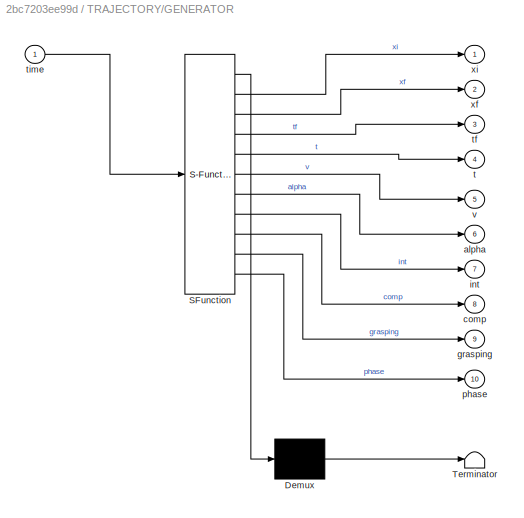
BLOCK [SubSystem] TRAJECTORY/GENERATOR
  ErrorFcn = Stateflow.Translate.translate
  PermitHierarchicalResolution = ExplicitOnly
  Ports = [1, 10]
  RequestExecContextInheritance = off
  SFBlockType = MATLAB Function
  TreatAsAtomicUnit = on
BLOCK [Demux] TRAJECTORY/GENERATOR/ Demux 
  Outputs = 1
  Ports = [1, 1]
BLOCK [S-Function] TRAJECTORY/GENERATOR/ SFunction 
  EnableBusSupport = on
  FunctionName = sf_sfun
  PortCounts = [1 11]
  Ports = [1, 11]
  SFcnIsStateOwnerBlock = off
  SFunctionDeploymentMode = off
  Tag = Stateflow S-Function 11
BLOCK [Terminator] TRAJECTORY/GENERATOR/ Terminator 
BLOCK [Outport] TRAJECTORY/GENERATOR/alpha
  Port = 6
BLOCK [Outport] TRAJECTORY/GENERATOR/comp
  Port = 8
BLOCK [Outport] TRAJECTORY/GENERATOR/grasping
  Port = 9
BLOCK [Outport] TRAJECTORY/GENERATOR/int
  Port = 7
BLOCK [Outport] TRAJECTORY/GENERATOR/phase
  Port = 10
BLOCK [Outport] TRAJECTORY/GENERATOR/t
  Port = 4
BLOCK [Outport] TRAJECTORY/GENERATOR/tf
  Port = 3
BLOCK [Inport] TRAJECTORY/GENERATOR/time
BLOCK [Outport] TRAJECTORY/GENERATOR/v
  Port = 5
BLOCK [Outport] TRAJECTORY/GENERATOR/xf
  Port = 2
BLOCK [Outport] TRAJECTORY/GENERATOR/xi
BLOCK [SubSystem] TRAJECTORY/INTERPOLATOR
  ErrorFcn = Stateflow.Translate.translate
  PermitHierarchicalResolution = ExplicitOnly
  Ports = [6, 3]
  RequestExecContextInheritance = off
  SFBlockType = MATLAB Function
  TreatAsAtomicUnit = on
BLOCK [Demux] TRAJECTORY/INTERPOLATOR/ Demux 
  Outputs = 1
  Ports = [1, 1]
BLOCK [S-Function] TRAJECTORY/INTERPOLATOR/ SFunction 
  EnableBusSupport = on
  FunctionName = sf_sfun
  PortCounts = [6 4]
  Ports = [6, 4]
  SFcnIsStateOwnerBlock = off
  SFunctionDeploymentMode = off
  Tag = Stateflow S-Function 17
BLOCK [Terminator] TRAJECTORY/INTERPOLATOR/ Terminator 
BLOCK [Inport] TRAJECTORY/INTERPOLATOR/alpha
  Port = 6
BLOCK [Outport] TRAJECTORY/INTERPOLATOR/ddz_des
  Port = 3
BLOCK [Outport] TRAJECTORY/INTERPOLATOR/dz_des
  Port = 2
BLOCK [Inport] TRAJECTORY/INTERPOLATOR/t
  Port = 4
BLOCK [Inport] TRAJECTORY/INTERPOLATOR/tf
  Port = 3
BLOCK [Inport] TRAJECTORY/INTERPOLATOR/v
  Port = 5
BLOCK [Inport] TRAJECTORY/INTERPOLATOR/xf
  Port = 2
BLOCK [Inport] TRAJECTORY/INTERPOLATOR/xi
BLOCK [Outport] TRAJECTORY/INTERPOLATOR/z_des
BLOCK [Outport] TRAJECTORY/comp
  Port = 4
BLOCK [Outport] TRAJECTORY/ddz_des
  Port = 3
BLOCK [Outport] TRAJECTORY/dz_des
  Port = 2
BLOCK [Outport] TRAJECTORY/grasping
  Port = 6
BLOCK [Outport] TRAJECTORY/int
  Port = 5
BLOCK [Outport] TRAJECTORY/phase
  Port = 7
BLOCK [Inport] TRAJECTORY/time
BLOCK [Outport] TRAJECTORY/z_des
BLOCK [Goto] Time
  GotoTag = time
BLOCK [From] Time1
  Commented = on
  GotoTag = time
BLOCK [From] Time2
  GotoTag = time
BLOCK [From] Time3
  GotoTag = time
BLOCK [ToWorkspace] To Workspace1
  FixptAsFi = on
  MaxDataPoints = inf
  Ports = [1]
  SampleTime = -1
  SaveFormat = Timeseries
  VariableName = q
BLOCK [ToWorkspace] To Workspace2
  Commented = on
  FixptAsFi = on
  MaxDataPoints = inf
  Ports = [1]
  SampleTime = -1
  SaveFormat = Timeseries
  VariableName = q
BLOCK [ToWorkspace] To Workspace4
  FixptAsFi = on
  MaxDataPoints = inf
  Ports = [1]
  SampleTime = -1
  Save2DSignal = 2-D array (concatenate along first dimension)
  SaveFormat = Timeseries
  VariableName = z_des
BLOCK [Scope] Velocity M_D_S
  Floating = off
  NumInputPorts = 1
  Ports = [1]
  ScopeSpecificationString = Simulink.scopes.TimeScopeBlockCfg('CurrentConfiguration', extmgr.ConfigurationSet(extmgr.Configuration('Core','General UI',true),extmgr.Configuration('Core','Source UI',true),extmgr.Configuration('Sources','WiredSimulink',true,'DataLoggingVariableName','ScopeData12'),extmgr.Configuration('Visuals','Time Domain',true,'SerializedDisplays',{struct('MinYLimReal','-1.35562','MaxYLimReal','2.70609','YLa...<+1413ch>
BLOCK [Goto] comp
  GotoTag = comp
BLOCK [From] comp1
  Commented = on
  GotoTag = comp
BLOCK [From] comp2
  GotoTag = comp
BLOCK [From] comp3
  GotoTag = comp
BLOCK [Goto] ddz_des
  GotoTag = ddz_des
BLOCK [SubSystem] direct kinematics
  Commented = on
  ErrorFcn = Stateflow.Translate.translate
  PermitHierarchicalResolution = ExplicitOnly
  Ports = [2, 3]
  RequestExecContextInheritance = off
  SFBlockType = MATLAB Function
  TreatAsAtomicUnit = on
BLOCK [Demux] direct kinematics/ Demux 
  Outputs = 1
  Ports = [1, 1]
BLOCK [S-Function] direct kinematics/ SFunction 
  EnableBusSupport = on
  FunctionName = sf_sfun
  PortCounts = [2 4]
  Ports = [2, 4]
  SFcnIsStateOwnerBlock = off
  SFunctionDeploymentMode = off
  Tag = Stateflow S-Function 12
BLOCK [Terminator] direct kinematics/ Terminator 
BLOCK [Outport] direct kinematics/dz
  Port = 2
BLOCK [Outport] direct kinematics/or
  Port = 3
BLOCK [Inport] direct kinematics/q
  Port = 2
BLOCK [Inport] direct kinematics/q_dot
BLOCK [Outport] direct kinematics/z
BLOCK [SubSystem] direct kinematics1
  ErrorFcn = Stateflow.Translate.translate
  PermitHierarchicalResolution = ExplicitOnly
  Ports = [2, 3]
  RequestExecContextInheritance = off
  SFBlockType = MATLAB Function
  TreatAsAtomicUnit = on
BLOCK [Demux] direct kinematics1/ Demux 
  Outputs = 1
  Ports = [1, 1]
BLOCK [S-Function] direct kinematics1/ SFunction 
  EnableBusSupport = on
  FunctionName = sf_sfun
  PortCounts = [2 4]
  Ports = [2, 4]
  SFcnIsStateOwnerBlock = off
  SFunctionDeploymentMode = off
  Tag = Stateflow S-Function 14
BLOCK [Terminator] direct kinematics1/ Terminator 
BLOCK [Outport] direct kinematics1/dz
  Port = 2
BLOCK [Outport] direct kinematics1/or
  Port = 3
BLOCK [Inport] direct kinematics1/q
  Port = 2
BLOCK [Inport] direct kinematics1/q_dot
BLOCK [Outport] direct kinematics1/z
BLOCK [SubSystem] direct kinematics2
  ErrorFcn = Stateflow.Translate.translate
  PermitHierarchicalResolution = ExplicitOnly
  Ports = [2, 3]
  RequestExecContextInheritance = off
  SFBlockType = MATLAB Function
  TreatAsAtomicUnit = on
BLOCK [Demux] direct kinematics2/ Demux 
  Outputs = 1
  Ports = [1, 1]
BLOCK [S-Function] direct kinematics2/ SFunction 
  EnableBusSupport = on
  FunctionName = sf_sfun
  PortCounts = [2 4]
  Ports = [2, 4]
  SFcnIsStateOwnerBlock = off
  SFunctionDeploymentMode = off
  Tag = Stateflow S-Function 40
BLOCK [Terminator] direct kinematics2/ Terminator 
BLOCK [Outport] direct kinematics2/dz
  Port = 2
BLOCK [Outport] direct kinematics2/or
  Port = 3
BLOCK [Inport] direct kinematics2/q
  Port = 2
BLOCK [Inport] direct kinematics2/q_dot
BLOCK [Outport] direct kinematics2/z
BLOCK [Scope] dz desider
  Floating = off
  NumInputPorts = 1
  Ports = [1]
  ScopeSpecificationString = Simulink.scopes.TimeScopeBlockCfg('CurrentConfiguration', extmgr.ConfigurationSet(extmgr.Configuration('Core','General UI',true),extmgr.Configuration('Core','Source UI',true),extmgr.Configuration('Sources','WiredSimulink',true,'DataLoggingVariableName','ScopeData1'),extmgr.Configuration('Visuals','Time Domain',true,'SerializedDisplays',{struct('MinYLimReal','-0.35417','MaxYLimReal','0.40972','YLab...<+1520ch>
BLOCK [Goto] dz_des
  GotoTag = dz_des
  TagVisibility = global
BLOCK [Goto] grasping
  GotoTag = grasping
BLOCK [Goto] int
  GotoTag = int
BLOCK [Scope] int&comp
  Floating = off
  NumInputPorts = 2
  Ports = [2]
  ScopeSpecificationString = Simulink.scopes.TimeScopeBlockCfg('CurrentConfiguration', extmgr.ConfigurationSet(extmgr.Configuration('Core','General UI',true),extmgr.Configuration('Core','Source UI',true),extmgr.Configuration('Sources','WiredSimulink',true,'DataLoggingVariableName','ScopeData13'),extmgr.Configuration('Visuals','Time Domain',true,'SerializedDisplays',{struct('MinYLimReal','-0.125','MaxYLimReal','1.125','YLabelR...<+1677ch>
BLOCK [From] int1
  Commented = on
  GotoTag = int
BLOCK [From] int2
  GotoTag = int
BLOCK [From] int3
  GotoTag = int
BLOCK [SubSystem] null_space_controller
  Commented = on
  ErrorFcn = Stateflow.Translate.translate
  PermitHierarchicalResolution = ExplicitOnly
  Ports = [2, 1]
  RequestExecContextInheritance = off
  SFBlockType = MATLAB Function
  TreatAsAtomicUnit = on
BLOCK [Demux] null_space_controller/ Demux 
  Outputs = 1
  Ports = [1, 1]
BLOCK [S-Function] null_space_controller/ SFunction 
  EnableBusSupport = on
  FunctionName = sf_sfun
  PortCounts = [2 2]
  Ports = [2, 2]
  SFcnIsStateOwnerBlock = off
  SFunctionDeploymentMode = off
  Tag = Stateflow S-Function 8
BLOCK [Terminator] null_space_controller/ Terminator 
BLOCK [Inport] null_space_controller/q
BLOCK [Inport] null_space_controller/q_dot
  Port = 2
BLOCK [Outport] null_space_controller/tau
BLOCK [SubSystem] null_space_controller1
  ErrorFcn = Stateflow.Translate.translate
  PermitHierarchicalResolution = ExplicitOnly
  Ports = [2, 1]
  RequestExecContextInheritance = off
  SFBlockType = MATLAB Function
  TreatAsAtomicUnit = on
BLOCK [Demux] null_space_controller1/ Demux 
  Outputs = 1
  Ports = [1, 1]
BLOCK [S-Function] null_space_controller1/ SFunction 
  EnableBusSupport = on
  FunctionName = sf_sfun
  PortCounts = [2 2]
  Ports = [2, 2]
  SFcnIsStateOwnerBlock = off
  SFunctionDeploymentMode = off
  Tag = Stateflow S-Function 41
BLOCK [Terminator] null_space_controller1/ Terminator 
BLOCK [Inport] null_space_controller1/q
BLOCK [Inport] null_space_controller1/q_dot
  Port = 2
BLOCK [Outport] null_space_controller1/tau
BLOCK [Scope] or
  Floating = off
  NumInputPorts = 1
  Ports = [1]
  ScopeSpecificationString = Simulink.scopes.TimeScopeBlockCfg('CurrentConfiguration', extmgr.ConfigurationSet(extmgr.Configuration('Core','General UI',true),extmgr.Configuration('Core','Source UI',true),extmgr.Configuration('Sources','WiredSimulink',true,'DataLoggingVariableName','ScopeData6'),extmgr.Configuration('Visuals','Time Domain',true,'SerializedDisplays',{struct('MinYLimReal','-0.22072','MaxYLimReal','1.86626','YLab...<+1461ch>
BLOCK [Goto] phase
  GotoTag = phase
BLOCK [Scope] pos
  Commented = on
  Floating = off
  NumInputPorts = 1
  Ports = [1]
  ScopeSpecificationString = Simulink.scopes.TimeScopeBlockCfg('CurrentConfiguration', extmgr.ConfigurationSet(extmgr.Configuration('Core','General UI',true),extmgr.Configuration('Core','Source UI',true),extmgr.Configuration('Sources','WiredSimulink',true,'DataLoggingVariableName','ScopeData14'),extmgr.Configuration('Visuals','Time Domain',true,'SerializedDisplays',{struct('MinYLimReal','-0.55425','MaxYLimReal','0.74605','YLa...<+1454ch>
BLOCK [Scope] pos1
  Floating = off
  NumInputPorts = 1
  Ports = [1]
  ScopeSpecificationString = Simulink.scopes.TimeScopeBlockCfg('CurrentConfiguration', extmgr.ConfigurationSet(extmgr.Configuration('Core','General UI',true),extmgr.Configuration('Core','Source UI',true),extmgr.Configuration('Sources','WiredSimulink',true,'DataLoggingVariableName','ScopeData8'),extmgr.Configuration('Visuals','Time Domain',true,'SerializedDisplays',{struct('MinYLimReal','-0.55425','MaxYLimReal','0.74605','YLab...<+1453ch>
BLOCK [Scope] q_dot
  Commented = on
  Floating = off
  NumInputPorts = 1
  Ports = [1]
  ScopeSpecificationString = Simulink.scopes.TimeScopeBlockCfg('CurrentConfiguration', extmgr.ConfigurationSet(extmgr.Configuration('Core','General UI',true),extmgr.Configuration('Core','Source UI',true),extmgr.Configuration('Sources','WiredSimulink',true,'DataLoggingVariableName','ScopeData15'),extmgr.Configuration('Visuals','Time Domain',true,'SerializedDisplays',{struct('MinYLimReal','-19.7687','MaxYLimReal','19.01059','YL...<+1581ch>
BLOCK [Scope] q_dot1
  Floating = off
  NumInputPorts = 1
  Ports = [1]
  ScopeSpecificationString = Simulink.scopes.TimeScopeBlockCfg('CurrentConfiguration', extmgr.ConfigurationSet(extmgr.Configuration('Core','General UI',true),extmgr.Configuration('Core','Source UI',true),extmgr.Configuration('Sources','WiredSimulink',true,'DataLoggingVariableName','ScopeData9'),extmgr.Configuration('Visuals','Time Domain',true,'SerializedDisplays',{struct('MinYLimReal','-19.7687','MaxYLimReal','19.01059','YLa...<+1580ch>
BLOCK [Scope] tau
  Commented = on
  Floating = off
  NumInputPorts = 1
  Ports = [1]
  ScopeSpecificationString = Simulink.scopes.TimeScopeBlockCfg('CurrentConfiguration', extmgr.ConfigurationSet(extmgr.Configuration('Core','General UI',true),extmgr.Configuration('Core','Source UI',true),extmgr.Configuration('Sources','WiredSimulink',true,'DataLoggingVariableName','ScopeData16'),extmgr.Configuration('Visuals','Time Domain',true,'SerializedDisplays',{struct('MinYLimReal','-4440903894658961821771534509986032171...<+2128ch>
BLOCK [Scope] tau1
  Floating = off
  NumInputPorts = 1
  Ports = [1]
  ScopeSpecificationString = Simulink.scopes.TimeScopeBlockCfg('CurrentConfiguration', extmgr.ConfigurationSet(extmgr.Configuration('Core','General UI',true),extmgr.Configuration('Core','Source UI',true),extmgr.Configuration('Sources','WiredSimulink',true,'DataLoggingVariableName','ScopeData10'),extmgr.Configuration('Visuals','Time Domain',true,'SerializedDisplays',{struct('MinYLimReal','-179.93081','MaxYLimReal','236.84155',...<+1663ch>
BLOCK [Scope] vel
  Commented = on
  Floating = off
  NumInputPorts = 1
  Ports = [1]
  ScopeSpecificationString = Simulink.scopes.TimeScopeBlockCfg('CurrentConfiguration', extmgr.ConfigurationSet(extmgr.Configuration('Core','General UI',true),extmgr.Configuration('Core','Source UI',true),extmgr.Configuration('Sources','WiredSimulink',true,'DataLoggingVariableName','ScopeData17'),extmgr.Configuration('Visuals','Time Domain',true,'SerializedDisplays',{struct('MinYLimReal','-2.3883','MaxYLimReal','2.3675','YLabe...<+1453ch>
BLOCK [Scope] vel1
  Floating = off
  NumInputPorts = 1
  Ports = [1]
  ScopeSpecificationString = Simulink.scopes.TimeScopeBlockCfg('CurrentConfiguration', extmgr.ConfigurationSet(extmgr.Configuration('Core','General UI',true),extmgr.Configuration('Core','Source UI',true),extmgr.Configuration('Sources','WiredSimulink',true,'DataLoggingVariableName','ScopeData11'),extmgr.Configuration('Visuals','Time Domain',true,'SerializedDisplays',{struct('MinYLimReal','-0.5029','MaxYLimReal','0.38537','YLab...<+1458ch>
BLOCK [From] z_des1
  Commented = on
  GotoTag = z_des
BLOCK [From] z_des2
  GotoTag = z_des
BLOCK [From] z_des3
  Commented = on
  GotoTag = z_des
BLOCK [From] z_des4
  GotoTag = z_des
BLOCK [From] z_des5
  Commented = on
  GotoTag = z_des
BLOCK [From] z_des6
  GotoTag = z_des
BLOCK [From] z_des7
  GotoTag = z_des
BLOCK [From] z_des8
  GotoTag = z_des
ANNOTATION (root): INITIAL CONDITIONS
ANNOTATION (root): TRAJECTORY PLANNER
ANNOTATION FRANKA_Model_Joint_Space1: q_
ANNOTATION FRANKA_Model_Joint_Space1: q_dot
ANNOTATION FRANKA_Model_Joint_Space1: q_dot_dot
ANNOTATION FRANKA_Model_Joint_Space2: q_
ANNOTATION FRANKA_Model_Joint_Space2: q_dot
ANNOTATION FRANKA_Model_Joint_Space2: q_dot_dot
ANNOTATION M_D_S5: dx
NET CONTROLLER1:1 -> Display1:1, Sum2:1
LINE CONTROLLER:1 -> Sum:1
NET Clock:1 -> TRAJECTORY:1, Time:1
LINE Constant1:1 -> Sum3:1
LINE Constant2:1 -> Goto3:1
LINE Constant3:1 -> Goto2:1
LINE Constant4:1 -> Goto8:1
LINE Constant5:1 -> CONTROLLER:4
LINE Constant6:1 -> Mux:2
LINE Constant8:1 -> CONTROLLER1:4
LINE Constant9:1 -> Mux1:2
LINE Constant:1 -> Sum1:1
LINE FRANKA_Model_Joint_Space1/CORIOLIS:1 -> FRANKA_Model_Joint_Space1/Sum:3
LINE FRANKA_Model_Joint_Space1/F_ext:1 -> FRANKA_Model_Joint_Space1/MATLAB Function:1
LINE FRANKA_Model_Joint_Space1/GRAVITY:1 -> FRANKA_Model_Joint_Space1/Sum:2
LINE FRANKA_Model_Joint_Space1/Initial_Position:1 -> FRANKA_Model_Joint_Space1/Integrator:2
LINE FRANKA_Model_Joint_Space1/Initial_Velocity:1 -> FRANKA_Model_Joint_Space1/Integrator1:2
NET FRANKA_Model_Joint_Space1/Integrator1:1 -> FRANKA_Model_Joint_Space1/CORIOLIS:2, FRANKA_Model_Joint_Space1/Integrator:1, FRANKA_Model_Joint_Space1/Joint Friction1:1, FRANKA_Model_Joint_Space1/Joint Friction:1, FRANKA_Model_Joint_Space1/q_dot:1
NET FRANKA_Model_Joint_Space1/Integrator:1 -> FRANKA_Model_Joint_Space1/CORIOLIS:1, FRANKA_Model_Joint_Space1/Displayqqq:1, FRANKA_Model_Joint_Space1/GRAVITY:1, FRANKA_Model_Joint_Space1/MASS^-1:1, FRANKA_Model_Joint_Space1/MATLAB Function:2, FRANKA_Model_Joint_Space1/q:1
LINE FRANKA_Model_Joint_Space1/Joint Friction1:1 -> FRANKA_Model_Joint_Space1/Sum:6
LINE FRANKA_Model_Joint_Space1/Joint Friction:1 -> FRANKA_Model_Joint_Space1/Sum:5
LINE FRANKA_Model_Joint_Space1/MASS^-1:1 -> FRANKA_Model_Joint_Space1/Integrator1:1
LINE FRANKA_Model_Joint_Space1/MATLAB Function:1 -> FRANKA_Model_Joint_Space1/Sum:1
LINE FRANKA_Model_Joint_Space1/Sum:1 -> FRANKA_Model_Joint_Space1/MASS^-1:2
NET FRANKA_Model_Joint_Space1/tau:1 -> FRANKA_Model_Joint_Space1/Display5:1, FRANKA_Model_Joint_Space1/Sum:4
NET FRANKA_Model_Joint_Space1:1 -> Goto7:1, direct kinematics:1, q_dot:1
NET FRANKA_Model_Joint_Space1:2 -> Gain1:1, Goto1:1, Scope1:3, To Workspace2:1, direct kinematics:2
LINE FRANKA_Model_Joint_Space2/CORIOLIS:1 -> FRANKA_Model_Joint_Space2/Sum:3
LINE FRANKA_Model_Joint_Space2/F_ext:1 -> FRANKA_Model_Joint_Space2/MATLAB Function:1
LINE FRANKA_Model_Joint_Space2/GRAVITY:1 -> FRANKA_Model_Joint_Space2/Sum:2
LINE FRANKA_Model_Joint_Space2/Initial_Position:1 -> FRANKA_Model_Joint_Space2/Integrator:2
LINE FRANKA_Model_Joint_Space2/Initial_Velocity:1 -> FRANKA_Model_Joint_Space2/Integrator1:2
NET FRANKA_Model_Joint_Space2/Integrator1:1 -> FRANKA_Model_Joint_Space2/CORIOLIS:2, FRANKA_Model_Joint_Space2/Integrator:1, FRANKA_Model_Joint_Space2/Joint Friction1:1, FRANKA_Model_Joint_Space2/Joint Friction:1, FRANKA_Model_Joint_Space2/q_dot:1
NET FRANKA_Model_Joint_Space2/Integrator:1 -> FRANKA_Model_Joint_Space2/CORIOLIS:1, FRANKA_Model_Joint_Space2/Displayqqq:1, FRANKA_Model_Joint_Space2/GRAVITY:1, FRANKA_Model_Joint_Space2/MASS^-1:1, FRANKA_Model_Joint_Space2/MATLAB Function:2, FRANKA_Model_Joint_Space2/q:1
LINE FRANKA_Model_Joint_Space2/Joint Friction1:1 -> FRANKA_Model_Joint_Space2/Sum:6
LINE FRANKA_Model_Joint_Space2/Joint Friction:1 -> FRANKA_Model_Joint_Space2/Sum:5
LINE FRANKA_Model_Joint_Space2/MASS^-1:1 -> FRANKA_Model_Joint_Space2/Integrator1:1
LINE FRANKA_Model_Joint_Space2/MATLAB Function:1 -> FRANKA_Model_Joint_Space2/Sum:1
LINE FRANKA_Model_Joint_Space2/Sum:1 -> FRANKA_Model_Joint_Space2/MASS^-1:2
NET FRANKA_Model_Joint_Space2/tau:1 -> FRANKA_Model_Joint_Space2/Display5:1, FRANKA_Model_Joint_Space2/Sum:4
NET FRANKA_Model_Joint_Space2:1 -> Goto10:1, direct kinematics2:1, q_dot1:1
NET FRANKA_Model_Joint_Space2:2 -> Gain2:1, Goto5:1, Scope6:3, To Workspace1:1, direct kinematics2:2
LINE F_ext1:1 -> Sum1:2
LINE F_ext2:1 -> Sum3:2
NET F_ext4:1 -> F_ext3:1, Mux1:1, PLANNER2:1
LINE From10:1 -> PLANNER:2
LINE From11:1 -> F_ext1:1
LINE From12:1 -> M_D_S5:7
LINE From13:1 -> M_D_S5:8
LINE From14:1 -> F_ext2:1
LINE From15:1 -> F_ext1:3
LINE From16:1 -> direct kinematics1:1
LINE From17:1 -> direct kinematics1:2
LINE From18:1 -> M_D_S5:4
LINE From19:1 -> FRANKA_Model_Joint_Space1:4
LINE From1:1 -> CONTROLLER:9
LINE From20:1 -> null_space_controller:1
LINE From21:1 -> CONTROLLER1:9
LINE From22:1 -> null_space_controller:2
LINE From23:1 -> PLANNER2:2
LINE From24:1 -> F_ext4:1
LINE From25:1 -> F_ext4:3
LINE From26:1 -> FRANKA_Model_Joint_Space2:4
LINE From27:1 -> null_space_controller1:1
LINE From28:1 -> null_space_controller1:2
LINE From29:1 -> FRANKA_Model_Joint_Space2:3
LINE From2:1 -> M_D_S5:9
LINE From30:1 -> CONTROLLER1:6
LINE From31:1 -> CONTROLLER1:7
LINE From32:1 -> CONTROLLER1:8
LINE From33:1 -> PLANNER2:7
LINE From3:1 -> FRANKA_Model_Joint_Space1:3
LINE From5:1 -> M_D_S5:5
LINE From6:1 -> F_ext2:3
LINE From7:1 -> CONTROLLER:6
LINE From8:1 -> CONTROLLER:7
LINE From9:1 -> CONTROLLER:8
LINE From:1 -> PLANNER1:2
LINE Gain1:1 -> Joint angles:1
LINE Gain2:1 -> Joint angles1:1
LINE Gain3:1 -> Display_z_intial_position1:1
LINE Grasping1:1 -> F_ext2:2
LINE Grasping2:1 -> F_ext4:2
LINE Grasping:1 -> F_ext1:2
LINE MATLAB Function:1 -> CONTROLLER:2
LINE MATLAB Function:2 -> CONTROLLER:3
LINE M_D_S5/D:1 -> M_D_S5/DAMPER:2
NET M_D_S5/DAMPER:1 -> M_D_S5/Scope:1, M_D_S5/Sum:3
LINE M_D_S5/F_ext:1 -> M_D_S5/Sum:1
LINE M_D_S5/Initial_Position:1 -> M_D_S5/Integrator:2
LINE M_D_S5/Initial_Velocity:1 -> M_D_S5/Integrator1:2
NET M_D_S5/Integrator1:1 -> M_D_S5/Integrator:1, M_D_S5/Sum1:1, M_D_S5/VELOCITY:1, M_D_S5/velocita:1
NET M_D_S5/Integrator:1 -> M_D_S5/POSITION:1, M_D_S5/Sum2:1, M_D_S5/posizione:1
LINE M_D_S5/K:1 -> M_D_S5/SPRING:2
LINE M_D_S5/M:1 -> M_D_S5/MASS^-1:1
LINE M_D_S5/MASS^-1:1 -> M_D_S5/Sum3:1
NET M_D_S5/SPRING:1 -> M_D_S5/Scope1:1, M_D_S5/Sum:2
LINE M_D_S5/Sum1:1 -> M_D_S5/DAMPER:1
LINE M_D_S5/Sum2:1 -> M_D_S5/SPRING:1
NET M_D_S5/Sum3:1 -> M_D_S5/Integrator1:1, M_D_S5/acc:1
LINE M_D_S5/Sum:1 -> M_D_S5/MASS^-1:2
LINE M_D_S5/ddz_des:1 -> M_D_S5/Sum3:2
LINE M_D_S5/dz_des:1 -> M_D_S5/Sum1:2
NET M_D_S5/z_des:1 -> M_D_S5/Sum2:2, M_D_S5/posizione:2
NET M_D_S5:1 -> MDS_position:1, Scope8:3
LINE M_D_S5:2 -> Velocity M_D_S:1
NET Mux1:1 -> CONTROLLER1:1, FRANKA_Model_Joint_Space2:1
NET Mux:1 -> CONTROLLER:1, FRANKA_Model_Joint_Space1:1
LINE PLANNER/Demux1:1 -> PLANNER/KX_GENERATOR:2
LINE PLANNER/Demux1:2 -> PLANNER/KY_GENERATOR:2
LINE PLANNER/Demux1:3 -> PLANNER/KZ_GENERATOR:2
LINE PLANNER/Demux2:1 -> PLANNER/KX_GENERATOR:3
LINE PLANNER/Demux2:2 -> PLANNER/KY_GENERATOR:3
LINE PLANNER/Demux2:3 -> PLANNER/KZ_GENERATOR:3
LINE PLANNER/Demux3:1 -> PLANNER/KX_GENERATOR:4
LINE PLANNER/Demux3:2 -> PLANNER/KY_GENERATOR:4
LINE PLANNER/Demux3:3 -> PLANNER/KZ_GENERATOR:4
LINE PLANNER/Demux4:1 -> PLANNER/KX_GENERATOR:5
LINE PLANNER/Demux4:2 -> PLANNER/KY_GENERATOR:5
LINE PLANNER/Demux4:3 -> PLANNER/KZ_GENERATOR:5
LINE PLANNER/Demux:1 -> PLANNER/KX_GENERATOR:1
LINE PLANNER/Demux:2 -> PLANNER/KY_GENERATOR:1
LINE PLANNER/Demux:3 -> PLANNER/KZ_GENERATOR:1
LINE PLANNER/F_ext:1 -> PLANNER/Demux:1
LINE PLANNER/KD_INTERPOLATOR :1 -> PLANNER/K:1
LINE PLANNER/KD_INTERPOLATOR :2 -> PLANNER/D:1
LINE PLANNER/KX_GENERATOR:1 -> PLANNER/KD_INTERPOLATOR :2
LINE PLANNER/KY_GENERATOR:1 -> PLANNER/KD_INTERPOLATOR :3
LINE PLANNER/KZ_GENERATOR:1 -> PLANNER/KD_INTERPOLATOR :4
LINE PLANNER/comp:1 -> PLANNER/Demux4:1
LINE PLANNER/int:1 -> PLANNER/Demux3:1
LINE PLANNER/time:1 -> PLANNER/KD_INTERPOLATOR :1
LINE PLANNER/z:1 -> PLANNER/Demux1:1
LINE PLANNER/z_des:1 -> PLANNER/Demux2:1
LINE PLANNER1/Demux1:1 -> PLANNER1/KX_GENERATOR:2
LINE PLANNER1/Demux1:2 -> PLANNER1/KY_GENERATOR:2
LINE PLANNER1/Demux1:3 -> PLANNER1/KZ_GENERATOR:2
LINE PLANNER1/Demux2:1 -> PLANNER1/KX_GENERATOR:3
LINE PLANNER1/Demux2:2 -> PLANNER1/KY_GENERATOR:3
LINE PLANNER1/Demux2:3 -> PLANNER1/KZ_GENERATOR:3
LINE PLANNER1/Demux3:1 -> PLANNER1/KX_GENERATOR:4
LINE PLANNER1/Demux3:2 -> PLANNER1/KY_GENERATOR:4
LINE PLANNER1/Demux3:3 -> PLANNER1/KZ_GENERATOR:4
LINE PLANNER1/Demux4:1 -> PLANNER1/KX_GENERATOR:5
LINE PLANNER1/Demux4:2 -> PLANNER1/KY_GENERATOR:5
LINE PLANNER1/Demux4:3 -> PLANNER1/KZ_GENERATOR:5
LINE PLANNER1/Demux:1 -> PLANNER1/KX_GENERATOR:1
LINE PLANNER1/Demux:2 -> PLANNER1/KY_GENERATOR:1
LINE PLANNER1/Demux:3 -> PLANNER1/KZ_GENERATOR:1
LINE PLANNER1/F_ext:1 -> PLANNER1/Demux:1
LINE PLANNER1/KD_INTERPOLATOR :1 -> PLANNER1/K:1
LINE PLANNER1/KD_INTERPOLATOR :2 -> PLANNER1/D:1
LINE PLANNER1/KX_GENERATOR:1 -> PLANNER1/KD_INTERPOLATOR :2
LINE PLANNER1/KY_GENERATOR:1 -> PLANNER1/KD_INTERPOLATOR :3
LINE PLANNER1/KZ_GENERATOR:1 -> PLANNER1/KD_INTERPOLATOR :4
LINE PLANNER1/comp:1 -> PLANNER1/Demux4:1
LINE PLANNER1/int:1 -> PLANNER1/Demux3:1
LINE PLANNER1/time:1 -> PLANNER1/KD_INTERPOLATOR :1
LINE PLANNER1/z:1 -> PLANNER1/Demux1:1
LINE PLANNER1/z_des:1 -> PLANNER1/Demux2:1
NET PLANNER1:1 -> M_D_S5:2, Scope3:1
LINE PLANNER1:2 -> M_D_S5:3
LINE PLANNER2/Demux1:1 -> PLANNER2/KX_GENERATOR:2
LINE PLANNER2/Demux1:2 -> PLANNER2/KY_GENERATOR:2
LINE PLANNER2/Demux1:3 -> PLANNER2/KZ_GENERATOR:2
LINE PLANNER2/Demux2:1 -> PLANNER2/KX_GENERATOR:3
LINE PLANNER2/Demux2:2 -> PLANNER2/KY_GENERATOR:3
LINE PLANNER2/Demux2:3 -> PLANNER2/KZ_GENERATOR:3
LINE PLANNER2/Demux3:1 -> PLANNER2/KX_GENERATOR:5
LINE PLANNER2/Demux3:2 -> PLANNER2/KY_GENERATOR:5
LINE PLANNER2/Demux3:3 -> PLANNER2/KZ_GENERATOR:5
LINE PLANNER2/Demux4:1 -> PLANNER2/KX_GENERATOR:6
LINE PLANNER2/Demux4:2 -> PLANNER2/KY_GENERATOR:6
LINE PLANNER2/Demux4:3 -> PLANNER2/KZ_GENERATOR:6
LINE PLANNER2/Demux5:1 -> PLANNER2/KX_GENERATOR:4
LINE PLANNER2/Demux5:2 -> PLANNER2/KY_GENERATOR:4
LINE PLANNER2/Demux5:3 -> PLANNER2/KZ_GENERATOR:4
LINE PLANNER2/Demux:1 -> PLANNER2/KX_GENERATOR:1
LINE PLANNER2/Demux:2 -> PLANNER2/KY_GENERATOR:1
LINE PLANNER2/Demux:3 -> PLANNER2/KZ_GENERATOR:1
LINE PLANNER2/F_ext:1 -> PLANNER2/Demux:1
LINE PLANNER2/KD_INTERPOLATOR :1 -> PLANNER2/K:1
LINE PLANNER2/KD_INTERPOLATOR :2 -> PLANNER2/D:1
LINE PLANNER2/KD_INTERPOLATOR :3 -> PLANNER2/kvis:1
LINE PLANNER2/KD_INTERPOLATOR :4 -> PLANNER2/dvis:1
LINE PLANNER2/KX_GENERATOR:1 -> PLANNER2/KD_INTERPOLATOR :2
LINE PLANNER2/KY_GENERATOR:1 -> PLANNER2/KD_INTERPOLATOR :3
LINE PLANNER2/KZ_GENERATOR:1 -> PLANNER2/KD_INTERPOLATOR :4
LINE PLANNER2/comp:1 -> PLANNER2/Demux4:1
LINE PLANNER2/dz_des:1 -> PLANNER2/Demux5:1
LINE PLANNER2/int:1 -> PLANNER2/Demux3:1
LINE PLANNER2/time:1 -> PLANNER2/KD_INTERPOLATOR :1
LINE PLANNER2/z:1 -> PLANNER2/Demux1:1
LINE PLANNER2/z_des:1 -> PLANNER2/Demux2:1
LINE PLANNER2:1 -> CONTROLLER1:2
LINE PLANNER2:2 -> CONTROLLER1:3
LINE PLANNER2:3 -> K:1
LINE PLANNER2:4 -> D:1
LINE PLANNER:1 -> K_RR:1
LINE PLANNER:2 -> D_RR:1
LINE Saturation1:1 -> FRANKA_Model_Joint_Space2:2
LINE Saturation:1 -> FRANKA_Model_Joint_Space1:2
LINE Subsystem/Constant5:1 -> Subsystem/Out1:1
LINE Subsystem/Constant6:1 -> Subsystem/Out2:1
LINE Subsystem1/Constant5:1 -> Subsystem1/Out1:1
LINE Subsystem1/Constant6:1 -> Subsystem1/Out2:1
LINE Subsystem1:1 -> Scope6:1
LINE Subsystem1:2 -> Scope6:2
LINE Subsystem:1 -> Scope1:1
LINE Subsystem:2 -> Scope1:2
NET Sum1:1 -> F_ext:1, Mux:1
NET Sum2:1 -> Display:1, Saturation1:1, tau1:1
NET Sum3:1 -> F_ext_MDS:1, M_D_S5:1, PLANNER1:1
NET Sum:1 -> Saturation:1, tau:1
LINE TRAJECTORY/GENERATOR:1 -> TRAJECTORY/INTERPOLATOR:1
LINE TRAJECTORY/GENERATOR:10 -> TRAJECTORY/phase:1
LINE TRAJECTORY/GENERATOR:2 -> TRAJECTORY/INTERPOLATOR:2
LINE TRAJECTORY/GENERATOR:3 -> TRAJECTORY/INTERPOLATOR:3
LINE TRAJECTORY/GENERATOR:4 -> TRAJECTORY/INTERPOLATOR:4
LINE TRAJECTORY/GENERATOR:5 -> TRAJECTORY/INTERPOLATOR:5
LINE TRAJECTORY/GENERATOR:6 -> TRAJECTORY/INTERPOLATOR:6
LINE TRAJECTORY/GENERATOR:7 -> TRAJECTORY/int:1
LINE TRAJECTORY/GENERATOR:8 -> TRAJECTORY/comp:1
LINE TRAJECTORY/GENERATOR:9 -> TRAJECTORY/grasping:1
LINE TRAJECTORY/INTERPOLATOR:1 -> TRAJECTORY/z_des:1
LINE TRAJECTORY/INTERPOLATOR:2 -> TRAJECTORY/dz_des:1
LINE TRAJECTORY/INTERPOLATOR:3 -> TRAJECTORY/ddz_des:1
LINE TRAJECTORY/time:1 -> TRAJECTORY/GENERATOR:1
NET TRAJECTORY:1 -> Goto6:1, Scope4:1, To Workspace4:1
NET TRAJECTORY:2 -> dz desider:1, dz_des:1
LINE TRAJECTORY:3 -> ddz_des:1
NET TRAJECTORY:4 -> comp:1, int&comp:1
NET TRAJECTORY:5 -> int&comp:2, int:1
NET TRAJECTORY:6 -> GRASPING:1, grasping:1
LINE TRAJECTORY:7 -> phase:1
LINE Time1:1 -> PLANNER:3
LINE Time2:1 -> PLANNER1:3
LINE Time3:1 -> PLANNER2:3
LINE comp1:1 -> PLANNER:6
LINE comp2:1 -> PLANNER1:6
LINE comp3:1 -> PLANNER2:6
NET direct kinematics1:1 -> Display_z_intial_position:1, Goto:1
NET direct kinematics1:2 -> Goto4:1, Scope:1
NET direct kinematics1:3 -> Display_z_intial_position2:1, Gain3:1
NET direct kinematics2:1 -> Goto11:1, Scope8:1, pos1:1
LINE direct kinematics2:2 -> vel1:1
LINE direct kinematics2:3 -> or:1
NET direct kinematics:1 -> Goto9:1, Scope5:1, pos:1
LINE direct kinematics:2 -> vel:1
LINE direct kinematics:3 -> Scope2:1
LINE int1:1 -> PLANNER:5
LINE int2:1 -> PLANNER1:5
LINE int3:1 -> PLANNER2:5
NET null_space_controller1:1 -> Display2:1, Sum2:2
LINE null_space_controller:1 -> Sum:2
LINE z_des1:1 -> PLANNER:4
LINE z_des2:1 -> PLANNER1:4
LINE z_des3:1 -> CONTROLLER:5
LINE z_des4:1 -> M_D_S5:6
LINE z_des5:1 -> Scope5:2
LINE z_des6:1 -> PLANNER2:4
LINE z_des7:1 -> CONTROLLER1:5
LINE z_des8:1 -> Scope8:2
note: NET lines group one-source signal fan-out (src -> all destinations, sorted); 1:1 wires keep LINE
CHART F_ext2 states=1 transitions=1
  STATE_LABEL 'eML_blk_kernel()'
  STATE_LABEL 'SCRIPT:\nfunction F_ext = fcn(z, grasping, mass_can, g, phase, y_can, z_table, k_can, k_table, l_can, y_wall, z_shelf, k_wall, k_shelf) \n\n% hypothesis: table reaction force with elastic behaviour\nF_ext = zeros(3,1);\nF_ext(1) = 0;\nif phase == 1\n    % if contact is happened with can\n    if grasping == 0\n        if z(2) < y_can\n            F_ext(2) = -k_can*(z(2) - y_can);    \n        end\n        if z...<+940ch>'  <repeated x3 — deduplicated; at blocks: F_ext2, F_ext1, F_ext4>
CHART F_ext1 states=1 transitions=1
  STATE_LABEL 'eML_blk_kernel()'
CHART CONTROLLER states=1 transitions=1
  STATE_LABEL 'eML_blk_kernel()'
  STATE_LABEL "SCRIPT:\nfunction tau = fcn(F_ext, Km, Dm, or_des, zdes, dzdes, ddzdes, q, q_dot, M)\ncoder.extrinsic('get_MassMatrix','get_Jacobianodot','get_Jacobianoa','get_GravityVector','get_FrictionTorque','get_CoriolisMatrix')\n\n% dz = zeros(2,1);\n% z = zeros(2,1);\nB = zeros(7,7);\nS = zeros(7,7);\nG = zeros(7,1);\nJa = zeros(6,7);\nJa_dot = zeros(6,7);\ntau_fric = zeros(7,1);\nBm = eye(6)*M;\nJa = get_Jacobianoa(q)...<+1244ch>"
CHART PLANNER/KY_GENERATOR states=1 transitions=1
  STATE_LABEL 'eML_blk_kernel()'
  STATE_LABEL 'SCRIPT:\nfunction k = fcn(F_ext, z, z_des, int, comp, e_max, F_max, F_int_max)\n%% Description\n% Set the K coefficient for a variable impedance controller based on a\n% desired trajectory\n\n%% Outputs\n% k             stiffness\n\n%% Inputs\n% F_ext         measured external force\n% z_des         desired trajectory\n% z             current position\n% int, comp     booleans for the interaction and compensat...<+3608ch>'  <repeated x6 — deduplicated; at blocks: KY_GENERATOR, KZ_GENERATOR, KX_GENERATOR>
CHART PLANNER/KZ_GENERATOR states=1 transitions=1
  STATE_LABEL 'eML_blk_kernel()'
CHART PLANNER1/KD_INTERPOLATOR  states=1 transitions=1
  STATE_LABEL 'eML_blk_kernel()'
  STATE_LABEL 'SCRIPT:\nfunction [K,D] = fcn(time, kx_f, ky_f, kz_f, e_max, F_max, M, berta, a0, mass, csi)\n%% Description\n% Interpolate K in order to guarantee stability\n\n%% Outputs\n% K             Stiffness matrix\n% D             Damping matrix\n\n%% Inputs\n% kx_f, ky, f   desired values of K\n\n%% Parameters\n% F_max         nominal disturbance forces\n% e_max         maximum steady-state error\n% M             virtu...<+1576ch>'
CHART PLANNER1/KX_GENERATOR states=1 transitions=1
  STATE_LABEL 'eML_blk_kernel()'
CHART null_space_controller states=1 transitions=1
  STATE_LABEL 'eML_blk_kernel()'
  STATE_LABEL "SCRIPT:\nfunction tau = nsc(q, q_dot)\ncoder.extrinsic('get_Jacobianoa','get_MassMatrix');\nJa = zeros(6,7);\nB = zeros(7,7);\nq_min = [-2.8973   -1.7628   -2.8973   -3.0718   -2.8973   -0.0175  -2.8973];\nq_min = q_min + deg2rad([0 0 0 10 0 5 0]);\n%        166.0031  101.0010  166.0031 -3.9992   166.0031   215.0024  166.0031\nq_max = [ 2.8973    1.7628    2.8973  -0.0698    2.8973    3.7525    2.8973];\nq...<+432ch>"
CHART FRANKA_Model_Joint_Space1/CORIOLIS states=1 transitions=1
  STATE_LABEL 'eML_blk_kernel()'
  STATE_LABEL 'SCRIPT:\nfunction Fc = fcn(q,q_dot)\n\nC = zeros(7,7);\n\nC = get_CoriolisMatrix(q,q_dot);\n\nFc = C*q_dot;\n\nend\n'
CHART PLANNER1/KY_GENERATOR states=1 transitions=1
  STATE_LABEL 'eML_blk_kernel()'
CHART TRAJECTORY/GENERATOR states=1 transitions=1
  STATE_LABEL 'eML_blk_kernel()'
  STATE_LABEL 'SCRIPT:\nfunction  [xi, xf, tf, t, v, alpha, int, comp, grasping, phase] = fcn(time)\n\nalpha = 0.1;\nphase = 1;\nint = [1; 1; 1];\ncomp = [0; 0; 0];\ngrasping = 0;\n\nif time >= 0 && time < 4\n    tf = 4;\n    xi = [0.4; 0.4; 0.2];\n    xf = [0.4; 0.1; -0.1];\n    t = time;\nelseif time >= 4 && time < 5\n    tf = 1;\n    xf = [0.4; 0.1; -0.1];\n    xi = xf; \n    t = time - 4;\nelseif time >= 5 && time < 9\n    tf =...<+2326ch>'
CHART direct kinematics states=1 transitions=1
  STATE_LABEL 'eML_blk_kernel()'
  STATE_LABEL "SCRIPT:\nfunction [z,dz,or] = fcn(q_dot,q)\n% persistent dh_c\n% if isempty(dh_c)\n%     dh_c = Load_Franka_DH();\n% end\n[DH, Conv] = Load_Franka_DH();\nz = zeros(3,1);\n%z = get_pos(q);\n\n[p,R] = DirectKinematic(DH,[q;0],Conv);\nz = p;\nphi = atan2(R(2,1),R(1,1));\nteta = atan2(-R(3,1),sqrt(R(3,2)^2 + R(3,3)^2)); \npsi = atan2(R(3,2),R(3,3));\nor = [phi teta psi]';\n\nJa = zeros(3,7);\nJa = get_Jacobianoa(q);\n\nd...<+44ch>"
CHART PLANNER1/KZ_GENERATOR states=1 transitions=1
  STATE_LABEL 'eML_blk_kernel()'
CHART direct kinematics1 states=1 transitions=1
  STATE_LABEL 'eML_blk_kernel()'
  STATE_LABEL "SCRIPT:\nfunction [z,dz,or] = fcn(q_dot,q)\ncoder.extrinsic('get_Ja');\n% persistent dh_c\n% if isempty(dh_c)\n%     dh_c = Load_Franka_DH();\n% end\n[DH, Conv] = Load_Franka_DH();\nz = zeros(3,1);\n%z = get_pos(q);\n\n[p,R] = DirectKinematic(DH,[q;0],Conv);\nz = p;\nphi = atan2(R(2,1),R(1,1));\nteta = atan2(-R(3,1),sqrt(R(3,2)^2 + R(3,3)^2)); \npsi = atan2(R(3,2),R(3,3));\nor = [phi teta psi]';\n\nJa = zeros(6,7);...<+63ch>"
CHART PLANNER/KD_INTERPOLATOR  states=1 transitions=1
  STATE_LABEL 'eML_blk_kernel()'
  STATE_LABEL 'SCRIPT:\nfunction [K,D] = fcn(time, kx_f, ky_f, kz_f, e_max, F_max, M, berta, a0, mass, csi)\n%% Description\n% Interpolate K in order to guarantee stability\n\n%% Outputs\n% K             Stiffness matrix\n% D             Damping matrix\n\n%% Inputs\n% kx_f, ky, f   desired values of K\n\n%% Parameters\n% F_max         nominal disturbance forces\n% e_max         maximum steady-state error\n% M             virtu...<+1576ch>'
CHART PLANNER/KX_GENERATOR states=1 transitions=1
  STATE_LABEL 'eML_blk_kernel()'
CHART TRAJECTORY/INTERPOLATOR states=1 transitions=1
  STATE_LABEL 'eML_blk_kernel()'
  STATE_LABEL 'SCRIPT:\nfunction [z_des, dz_des, ddz_des] = fcn(xi, xf, tf, t, v, alpha)\n\nta = alpha*tf; \nxa = (1/2)*v*ta;\n\nif t >= 0 && t < ta\n    ddz_des = v./ta;\n    dz_des = ddz_des*t;\n    z_des = xi + (1/2)*ddz_des*t^2;\nelseif t >= ta && t < (tf-ta)\n    ddz_des = [0; 0; 0]; \n    dz_des = v; \n    z_des = xi + xa + dz_des*(t-ta);\nelseif t >= (tf- ta) && t < tf\n    ddz_des = -v./ta;\n    dz_des = v + ddz_des*(t ...<+172ch>'
CHART FRANKA_Model_Joint_Space1/GRAVITY states=1 transitions=1
  STATE_LABEL 'eML_blk_kernel()'
  STATE_LABEL 'SCRIPT:\nfunction G = fcn(q)\n\nG = zeros(7,1);\nG = get_GravityVector(q);\n\nend\n'
CHART FRANKA_Model_Joint_Space1/Joint Friction1 states=1 transitions=1
  STATE_LABEL 'eML_blk_kernel()'
  STATE_LABEL 'SCRIPT:\nfunction tau_f = fcn(q_dot)\nD=eye(7)*1;\ntau_f = -D*q_dot;\n\nend\n'
CHART FRANKA_Model_Joint_Space1/Joint Friction states=1 transitions=1
  STATE_LABEL 'eML_blk_kernel()'
  STATE_LABEL 'SCRIPT:\nfunction tau_f = fcn(q_dot)\n\ntau_f = get_FrictionTorque(q_dot);\n\nend\n'
CHART M_D_S5/DAMPER states=1 transitions=1
  STATE_LABEL 'eML_blk_kernel()'
  STATE_LABEL 'SCRIPT:\nfunction y = fcn(dx, D)\ny = - D*dx;\nend\n'
CHART M_D_S5/MASS^-1 states=1 transitions=1
  STATE_LABEL 'eML_blk_kernel()'
  STATE_LABEL 'SCRIPT:\nfunction ddx = fcn(M,F_tot)\nddx = (M^-1)*F_tot;\n\n\nend\n'
CHART M_D_S5/SPRING states=1 transitions=1
  STATE_LABEL 'eML_blk_kernel()'
  STATE_LABEL 'SCRIPT:\nfunction tau = fcn(x, K)\ntau= -K*x;\nend\n\n\n'
CHART FRANKA_Model_Joint_Space1/MASS^-1 states=1 transitions=1
  STATE_LABEL 'eML_blk_kernel()'
  STATE_LABEL 'SCRIPT:\nfunction ddq = fcn(q,F_tot)\n\nB = zeros(7,7);\nB = get_MassMatrix(q);\n\nddq = B\\F_tot;                      % Ftot*M^-1\n\nend\n'
CHART FRANKA_Model_Joint_Space1/MATLAB Function states=1 transitions=1
  STATE_LABEL 'eML_blk_kernel()'
  STATE_LABEL "SCRIPT:\nfunction F_ext = fcn(F,q)\n\nJa = zeros(6,7);\nJa = get_Jacobianoa(q);\n\nF_ext = zeros(7,1);\nF_ext = (Ja')*F;\n\nend"
CHART MATLAB Function states=1 transitions=1
  STATE_LABEL 'eML_blk_kernel()'
  STATE_LABEL 'SCRIPT:\nfunction [K, D] = fcn()\nK = zeros(6,6);\nK(1:3,1:3) = diag([1000 1000 1000]); %Klin\nK(4:6,4:6) = diag ([300 300 300]); %Kor\nD = zeros(6,6);\nD(1:3,1:3) = diag([2*sqrt(1000) 2*sqrt(1000) 2*sqrt(1000)]);\nD(4:6,4:6) = diag([2*sqrt(300) 2*sqrt(300) 2*sqrt(300)]);\n\nend\n\n'
CHART CONTROLLER1 states=1 transitions=1
  STATE_LABEL 'eML_blk_kernel()'
  STATE_LABEL "SCRIPT:\nfunction tau = fcn(F_ext, Km, Dm, or_des, zdes, dzdes, ddzdes, q, q_dot, M)\ncoder.extrinsic('get_MassMatrix','get_Ja_dot','get_Ja','get_GravityVector','get_FrictionTorque','get_CoriolisMatrix')\ncoder.extrinsic('wrapToPi');\n% dz = zeros(2,1);\n% z = zeros(2,1);\nB = zeros(7,7);\nS = zeros(7,7);\nG = zeros(7,1);\nJa = zeros(6,7);\nJa_dot = zeros(6,7);\ntau_fric = zeros(7,1);\nBm = eye(6)*M;\nJa = get...<+1532ch>"
CHART FRANKA_Model_Joint_Space2/CORIOLIS states=1 transitions=1
  STATE_LABEL 'eML_blk_kernel()'
  STATE_LABEL "SCRIPT:\nfunction Fc = fcn(q,q_dot)\ncoder.extrinsic('get_CoriolisMatrix');\nC = zeros(7,7);\nC = get_CoriolisMatrix(q,q_dot);\n\nFc = C*q_dot;\n\nend\n"
CHART FRANKA_Model_Joint_Space2/GRAVITY states=1 transitions=1
  STATE_LABEL 'eML_blk_kernel()'
  STATE_LABEL "SCRIPT:\nfunction G = fcn(q)\ncoder.extrinsic('get_GravityVector');\nG = zeros(7,1);\nG = get_GravityVector(q);\n\nend\n"
CHART FRANKA_Model_Joint_Space2/Joint Friction states=1 transitions=1
  STATE_LABEL 'eML_blk_kernel()'
  STATE_LABEL "SCRIPT:\nfunction tau_f = fcn(q_dot)\ncoder.extrinsic('get_FrictionTorque');\ntau_f = zeros(7,1);\ntau_f = get_FrictionTorque(q_dot);\n\nend\n"
CHART FRANKA_Model_Joint_Space2/Joint Friction1 states=1 transitions=1
  STATE_LABEL 'eML_blk_kernel()'
  STATE_LABEL 'SCRIPT:\nfunction tau_f = fcn(q_dot)\nD=eye(7)*1;\ntau_f = -D*q_dot;\n\nend\n'
CHART FRANKA_Model_Joint_Space2/MASS^-1 states=1 transitions=1
  STATE_LABEL 'eML_blk_kernel()'
  STATE_LABEL "SCRIPT:\nfunction ddq = fcn(q,F_tot)\ncoder.extrinsic('get_MassMatrix');\nB = zeros(7,7);\nB = get_MassMatrix(q);\n\n% ddq = B\\F_tot;     % Ftot*M^-1\n\nB_inv = inv(B);\nB_inv(isnan(B_inv)) = 1;\nddq = B_inv*F_tot;\n\n% B_modello = cond(B)\n\nend\n"
CHART FRANKA_Model_Joint_Space2/MATLAB Function states=1 transitions=1
  STATE_LABEL 'eML_blk_kernel()'
  STATE_LABEL "SCRIPT:\nfunction F_ext = fcn(F,q)\ncoder.extrinsic('get_Ja');\nJa = zeros(6,7);\nJa = get_Ja(q);\n\nF_ext = zeros(7,1);\nF_ext = (Ja')*F;\n\nend"
CHART F_ext4 states=1 transitions=1
  STATE_LABEL 'eML_blk_kernel()'
CHART PLANNER2/KY_GENERATOR states=1 transitions=1
  STATE_LABEL 'eML_blk_kernel()'
  STATE_LABEL 'SCRIPT:\nfunction k = fcn(F_ext, z, z_des, dz_des, int, comp, e_max, F_max, F_int_max)\n%% Description\n% Set the K coefficient for a variable impedance controller based on a\n% desired trajectory\n\n%% Outputs\n% k             stiffness\n\n%% Inputs\n% F_ext         measured external force\n% z_des         desired trajectory\n% z             current position\n% int, comp     booleans for the interaction and c...<+3608ch>'  <repeated x3 — deduplicated; at blocks: KY_GENERATOR, KX_GENERATOR, KZ_GENERATOR>
CHART PLANNER2/KD_INTERPOLATOR  states=1 transitions=1
  STATE_LABEL 'eML_blk_kernel()'
  STATE_LABEL 'SCRIPT:\nfunction [K,D,Kvis, Dvis] = fcn(time, kx_f, ky_f, kz_f, e_max, F_max, M, berta, a0, mass, csi)\n%% Description\n% Interpolate K in order to guarantee stability\n\n%% Outputs\n% K             Stiffness matrix\n% D             Damping matrix\n\n%% Inputs\n% kx_f, ky, f   desired values of K\n\n%% Parameters\n% F_max         nominal disturbance forces\n% e_max         maximum steady-state error\n% M       ...<+1799ch>'
CHART PLANNER2/KX_GENERATOR states=1 transitions=1
  STATE_LABEL 'eML_blk_kernel()'
CHART PLANNER2/KZ_GENERATOR states=1 transitions=1
  STATE_LABEL 'eML_blk_kernel()'
CHART direct kinematics2 states=1 transitions=1
  STATE_LABEL 'eML_blk_kernel()'
  STATE_LABEL "SCRIPT:\nfunction [z,dz,or] = fcn(q_dot,q)\ncoder.extrinsic('get_Ja');\n% persistent dh_c\n% if isempty(dh_c)\n%     dh_c = Load_Franka_DH();\n% end\n[DH, Conv] = Load_Franka_DH();\nz = zeros(3,1);\n%z = get_pos(q);\n\n[p,R] = DirectKinematic(DH,[q;0],Conv);\nz = p;\nphi = atan2(R(2,1),R(1,1));\nteta = atan2(-R(3,1),sqrt(R(3,2)^2 + R(3,3)^2)); \npsi = atan2(R(3,2),R(3,3));\nor = [phi teta psi]';\n\nJa = zeros(6,7);...<+63ch>"
CHART null_space_controller1 states=1 transitions=1
  STATE_LABEL 'eML_blk_kernel()'
  STATE_LABEL "SCRIPT:\nfunction tau = nsc(q, q_dot)\ncoder.extrinsic('get_Ja','get_MassMatrix');\nJa = zeros(6,7);\nB = zeros(7,7);\nq_min = [-2.8973   -1.7628   -2.8973   -3.0718   -2.8973   -0.0175  -2.8973];\nq_min = q_min + deg2rad([0 0 0 10 0 5 0]);\n%        166.0031  101.0010  166.0031 -3.9992   166.0031   215.0024  166.0031\nq_max = [ 2.8973    1.7628    2.8973  -0.0698    2.8973    3.7525    2.8973];\nq_max = q...<+539ch>"
